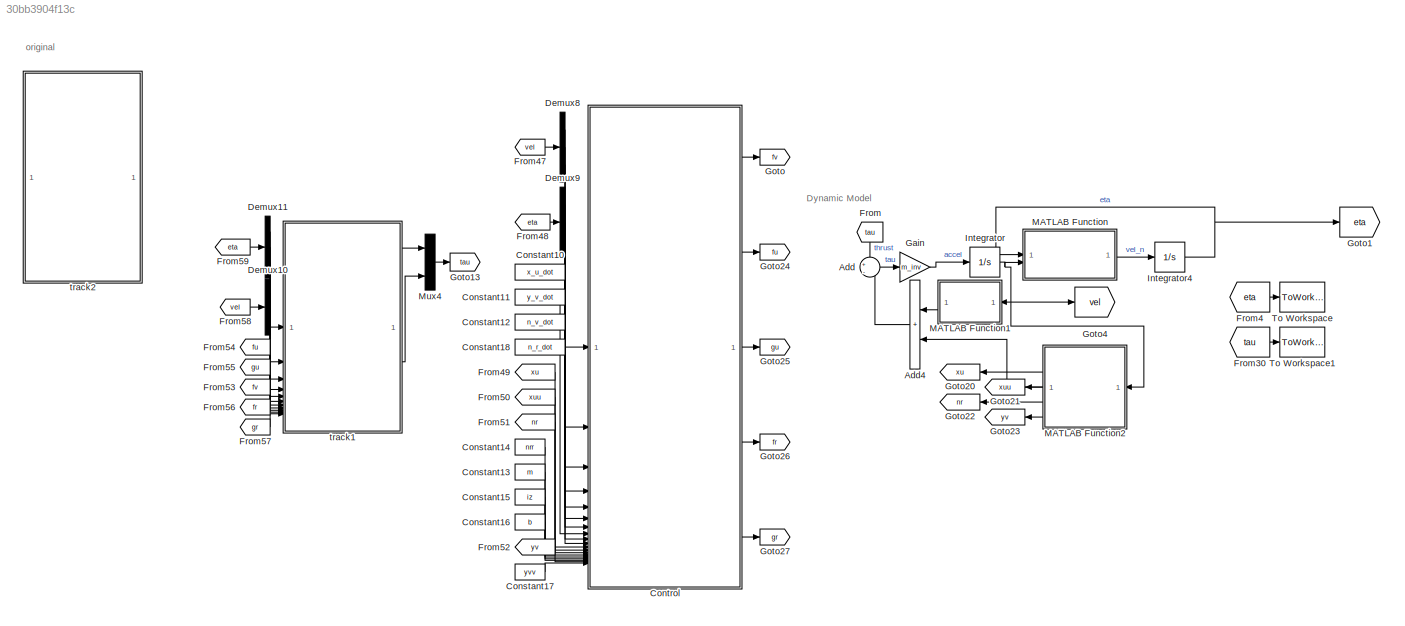
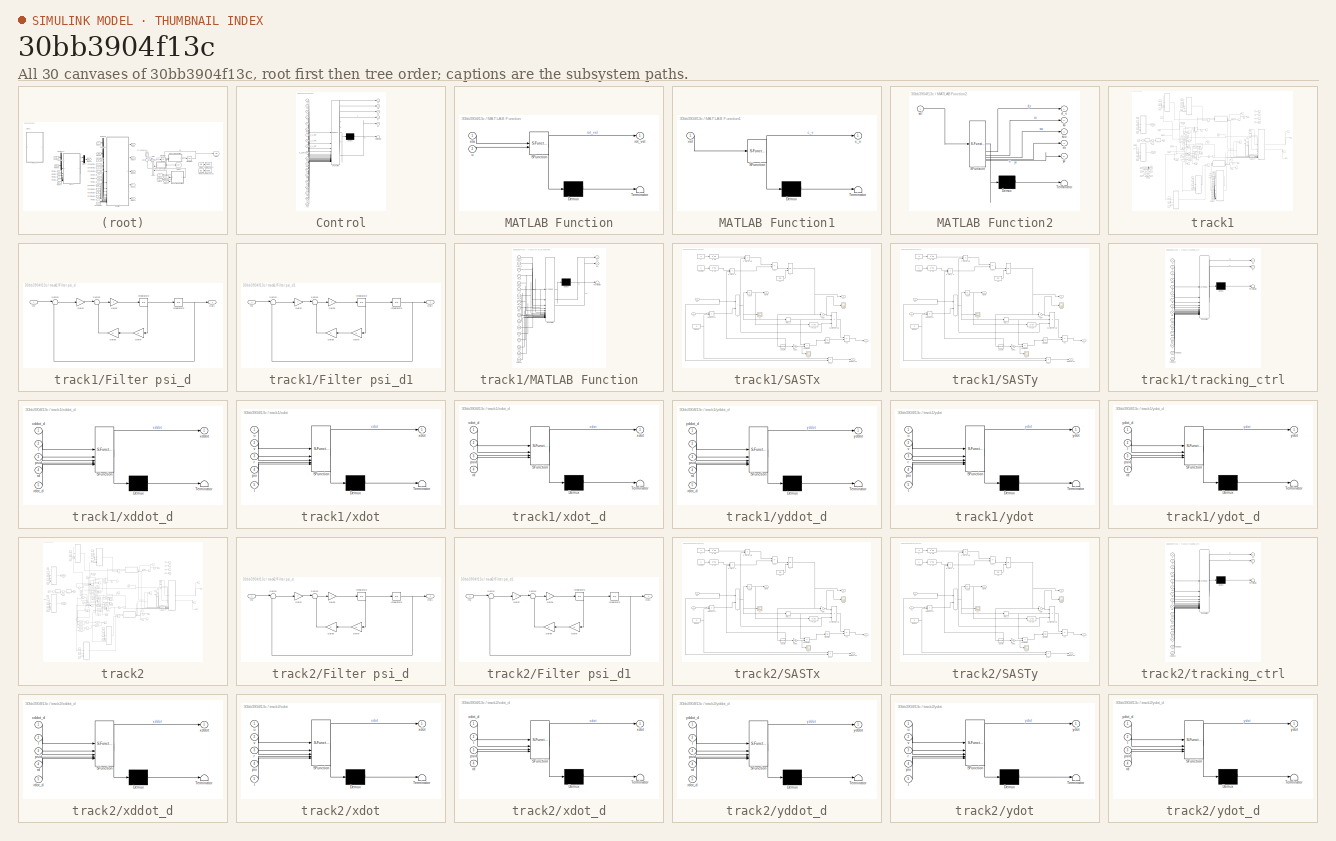
[diagram: thumbnail index - all 30 canvases of the model, root first then tree order]
MODEL slx_30bb3904f13c
KIND model
CONFIG AbsTol = auto
CONFIG EnableMultiTasking = off
CONFIG FixedStep = ts
CONFIG MaxStep = auto
CONFIG MinStep = auto
CONFIG RelTol = 1e-3
CONFIG SampleTimeConstraint = Unconstrained
CONFIG SolverName = ode1be
CONFIG StartTime = 0.0
CONFIG StopTime = tf
BLOCK [Sum] Add
  Inputs = +|-
BLOCK [Sum] Add4
  IconShape = rectangular
  NameLocation = top
BLOCK [Constant] Constant10
  Value = x_u_dot
BLOCK [Constant] Constant11
  Value = y_v_dot
BLOCK [Constant] Constant12
  Value = n_v_dot
BLOCK [Constant] Constant13
  Value = m
BLOCK [Constant] Constant14
  Value = nrr
BLOCK [Constant] Constant15
  Value = iz
BLOCK [Constant] Constant16
  Value = b
BLOCK [Constant] Constant17
  Value = yvv
BLOCK [Constant] Constant18
  Value = n_r_dot
BLOCK [SubSystem] Control
  ErrorFcn = Stateflow.Translate.translate
  LibrarySourceBlock = simulink/User-Defined\nFunctions/MATLAB Function
  PermitHierarchicalResolution = ExplicitOnly
  SFBlockType = MATLAB Function
  TreatAsAtomicUnit = on
BLOCK [Demux] Control/ Demux 
  Outputs = 1
BLOCK [S-Function] Control/ SFunction 
  EnableBusSupport = on
  FunctionName = sf_sfun
  PortCounts = [19 6]
  SFcnIsStateOwnerBlock = off
  SFunctionDeploymentMode = off
  Tag = Stateflow S-Function 15
BLOCK [Terminator] Control/ Terminator 
BLOCK [Inport] Control/b
  Port = 17
BLOCK [Outport] Control/fr
  Port = 4
BLOCK [Outport] Control/fu
  Port = 2
BLOCK [Outport] Control/fv
BLOCK [Outport] Control/gr
  Port = 5
BLOCK [Outport] Control/gu
  Port = 3
BLOCK [Inport] Control/iz
  Port = 16
BLOCK [Inport] Control/m
  Port = 15
BLOCK [Inport] Control/n_r_dot
  Port = 10
BLOCK [Inport] Control/n_v_dot
  Port = 9
BLOCK [Inport] Control/nr
  Port = 13
BLOCK [Inport] Control/nrr
  Port = 14
BLOCK [Inport] Control/psi
  Port = 6
BLOCK [Inport] Control/r
  Port = 3
BLOCK [Inport] Control/u
BLOCK [Inport] Control/v
  Port = 2
BLOCK [Inport] Control/x
  Port = 4
BLOCK [Inport] Control/x_u_dot
  Port = 7
BLOCK [Inport] Control/xu
  Port = 11
BLOCK [Inport] Control/xuu
  Port = 12
BLOCK [Inport] Control/y
  Port = 5
BLOCK [Inport] Control/y_v_dot
  Port = 8
BLOCK [Inport] Control/yv
  Port = 18
BLOCK [Inport] Control/yvv
  Port = 19
BLOCK [Demux] Demux10
  Outputs = 3
BLOCK [Demux] Demux11
  Outputs = 3
BLOCK [Demux] Demux8
  Outputs = 3
BLOCK [Demux] Demux9
  Outputs = 3
BLOCK [From] From
  GotoTag = tau
  NameLocation = left
BLOCK [From] From30
  GotoTag = tau
BLOCK [From] From4
  GotoTag = eta
BLOCK [From] From47
  GotoTag = vel
BLOCK [From] From48
  GotoTag = eta
BLOCK [From] From49
  GotoTag = xu
  NameLocation = top
BLOCK [From] From50
  GotoTag = xuu
  NameLocation = top
BLOCK [From] From51
  GotoTag = nr
  NameLocation = top
BLOCK [From] From52
  GotoTag = yv
  NameLocation = top
BLOCK [From] From53
  GotoTag = fv
BLOCK [From] From54
  GotoTag = fu
BLOCK [From] From55
  GotoTag = gu
BLOCK [From] From56
  GotoTag = fr
BLOCK [From] From57
  GotoTag = gr
BLOCK [From] From58
  GotoTag = vel
BLOCK [From] From59
  GotoTag = eta
BLOCK [Gain] Gain
  Gain = m_inv
  Multiplication = Matrix(K*u)
BLOCK [Goto] Goto
  GotoTag = fv
BLOCK [Goto] Goto1
  GotoTag = eta
BLOCK [Goto] Goto13
  GotoTag = tau
BLOCK [Goto] Goto20
  GotoTag = xu
  NameLocation = top
BLOCK [Goto] Goto21
  GotoTag = xuu
  NameLocation = top
BLOCK [Goto] Goto22
  GotoTag = nr
  NameLocation = top
BLOCK [Goto] Goto23
  GotoTag = yv
  NameLocation = top
BLOCK [Goto] Goto24
  GotoTag = fu
BLOCK [Goto] Goto25
  GotoTag = gu
BLOCK [Goto] Goto26
  GotoTag = fr
BLOCK [Goto] Goto27
  GotoTag = gr
BLOCK [Goto] Goto4
  GotoTag = vel
BLOCK [Integrator] Integrator
  InitialCondition = [0;0;0]
  LowerSaturationLimit = -2.5
  UpperSaturationLimit = 2.5
BLOCK [Integrator] Integrator4
  InitialCondition = [0;0;0]
BLOCK [SubSystem] MATLAB Function
  ErrorFcn = Stateflow.Translate.translate
  LibrarySourceBlock = simulink/User-Defined\nFunctions/MATLAB Function
  PermitHierarchicalResolution = ExplicitOnly
  SFBlockType = MATLAB Function
  TreatAsAtomicUnit = on
BLOCK [Demux] MATLAB Function/ Demux 
  Outputs = 1
BLOCK [S-Function] MATLAB Function/ SFunction 
  EnableBusSupport = on
  FunctionName = sf_sfun
  PortCounts = [2 2]
  SFcnIsStateOwnerBlock = off
  SFunctionDeploymentMode = off
  Tag = Stateflow S-Function 2
BLOCK [Terminator] MATLAB Function/ Terminator 
BLOCK [Inport] MATLAB Function/eta
BLOCK [Outport] MATLAB Function/rot_vel
BLOCK [Inport] MATLAB Function/u
  Port = 2
BLOCK [SubSystem] MATLAB Function1
  ErrorFcn = Stateflow.Translate.translate
  LibrarySourceBlock = simulink/User-Defined\nFunctions/MATLAB Function
  NameLocation = top
  PermitHierarchicalResolution = ExplicitOnly
  SFBlockType = MATLAB Function
  TreatAsAtomicUnit = on
BLOCK [Demux] MATLAB Function1/ Demux 
  Outputs = 1
BLOCK [S-Function] MATLAB Function1/ SFunction 
  EnableBusSupport = on
  FunctionName = sf_sfun
  Parameters = m,n_v_dot,x_u_dot,y_r_dot,y_v_dot
  PortCounts = [1 2]
  SFcnIsStateOwnerBlock = off
  SFunctionDeploymentMode = off
  Tag = Stateflow S-Function 1
BLOCK [Terminator] MATLAB Function1/ Terminator 
BLOCK [Outport] MATLAB Function1/c_v
BLOCK [Inport] MATLAB Function1/vel
BLOCK [SubSystem] MATLAB Function2
  ErrorFcn = Stateflow.Translate.translate
  LibrarySourceBlock = simulink/User-Defined\nFunctions/MATLAB Function
  NameLocation = top
  PermitHierarchicalResolution = ExplicitOnly
  SFBlockType = MATLAB Function
  TreatAsAtomicUnit = on
BLOCK [Demux] MATLAB Function2/ Demux 
  Outputs = 1
BLOCK [S-Function] MATLAB Function2/ SFunction 
  EnableBusSupport = on
  FunctionName = sf_sfun
  Parameters = nrr,nrv,nvr,nvv,yrr,yrv,yvr,yvv
  PortCounts = [1 6]
  SFcnIsStateOwnerBlock = off
  SFunctionDeploymentMode = off
  Tag = Stateflow S-Function 3
BLOCK [Terminator] MATLAB Function2/ Terminator 
BLOCK [Outport] MATLAB Function2/d_v
BLOCK [Outport] MATLAB Function2/nr
  Port = 4
BLOCK [Inport] MATLAB Function2/vel
BLOCK [Outport] MATLAB Function2/xu
  Port = 2
BLOCK [Outport] MATLAB Function2/xuu
  Port = 3
BLOCK [Outport] MATLAB Function2/yv
  Port = 5
BLOCK [Mux] Mux4
  DisplayOption = bar
  Inputs = 3
BLOCK [ToWorkspace] To Workspace
  FixptAsFi = on
  MaxDataPoints = inf
  SampleTime = -1
  SaveFormat = Timeseries
  VariableName = simout
BLOCK [ToWorkspace] To Workspace1
  FixptAsFi = on
  MaxDataPoints = inf
  SampleTime = -1
  SaveFormat = Timeseries
  VariableName = simout1
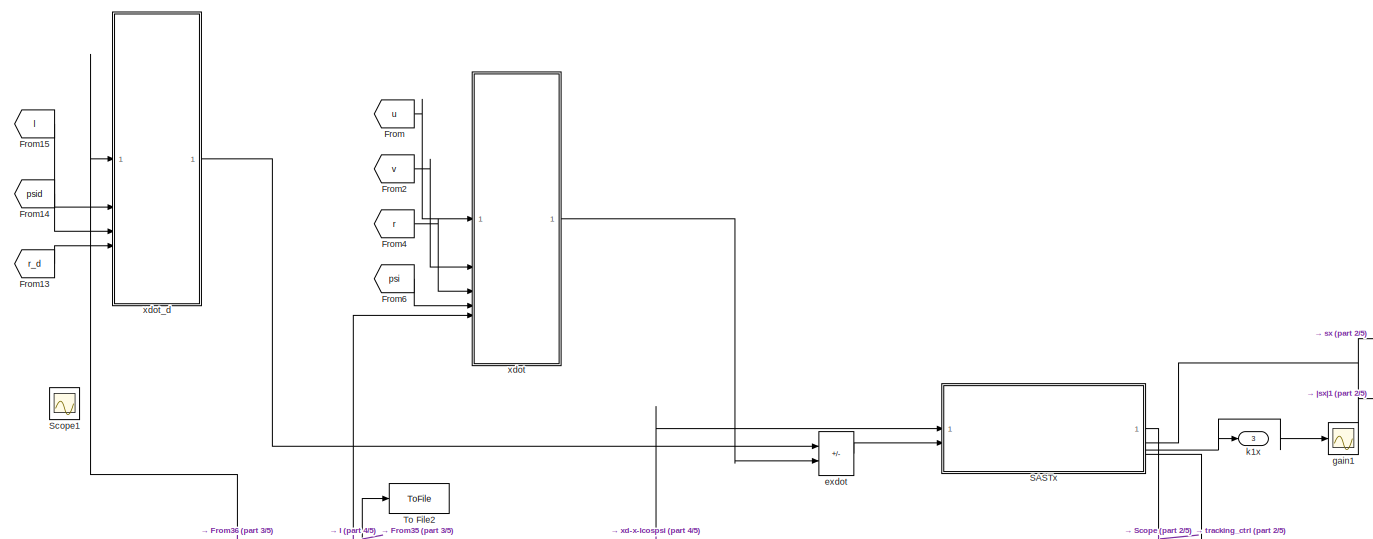
[diagram: track1 - part 1/5, top center region]
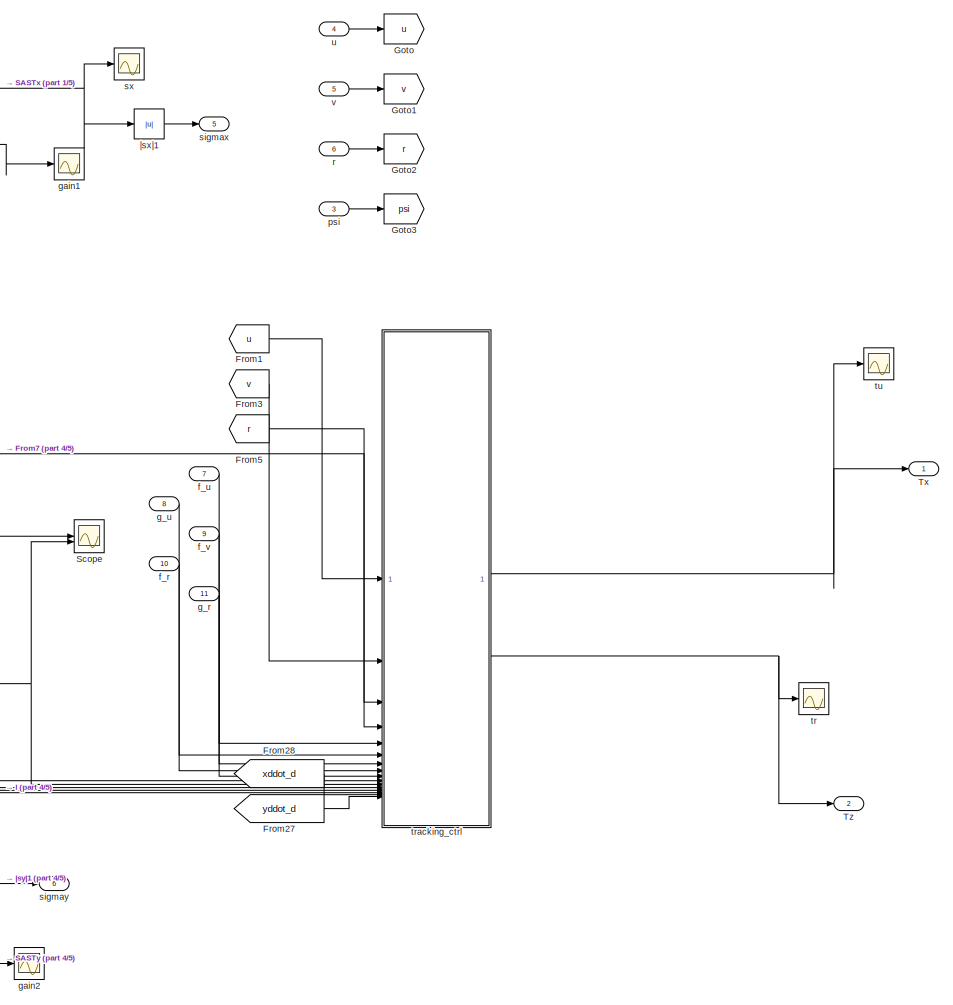
[diagram: track1 - part 2/5, middle right region]
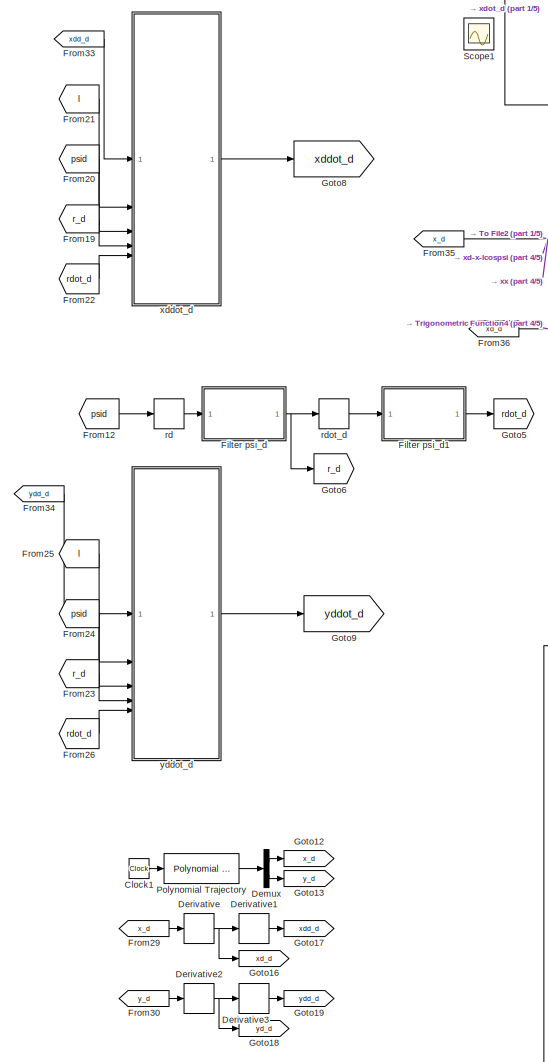
[diagram: track1 - part 3/5, middle left region]
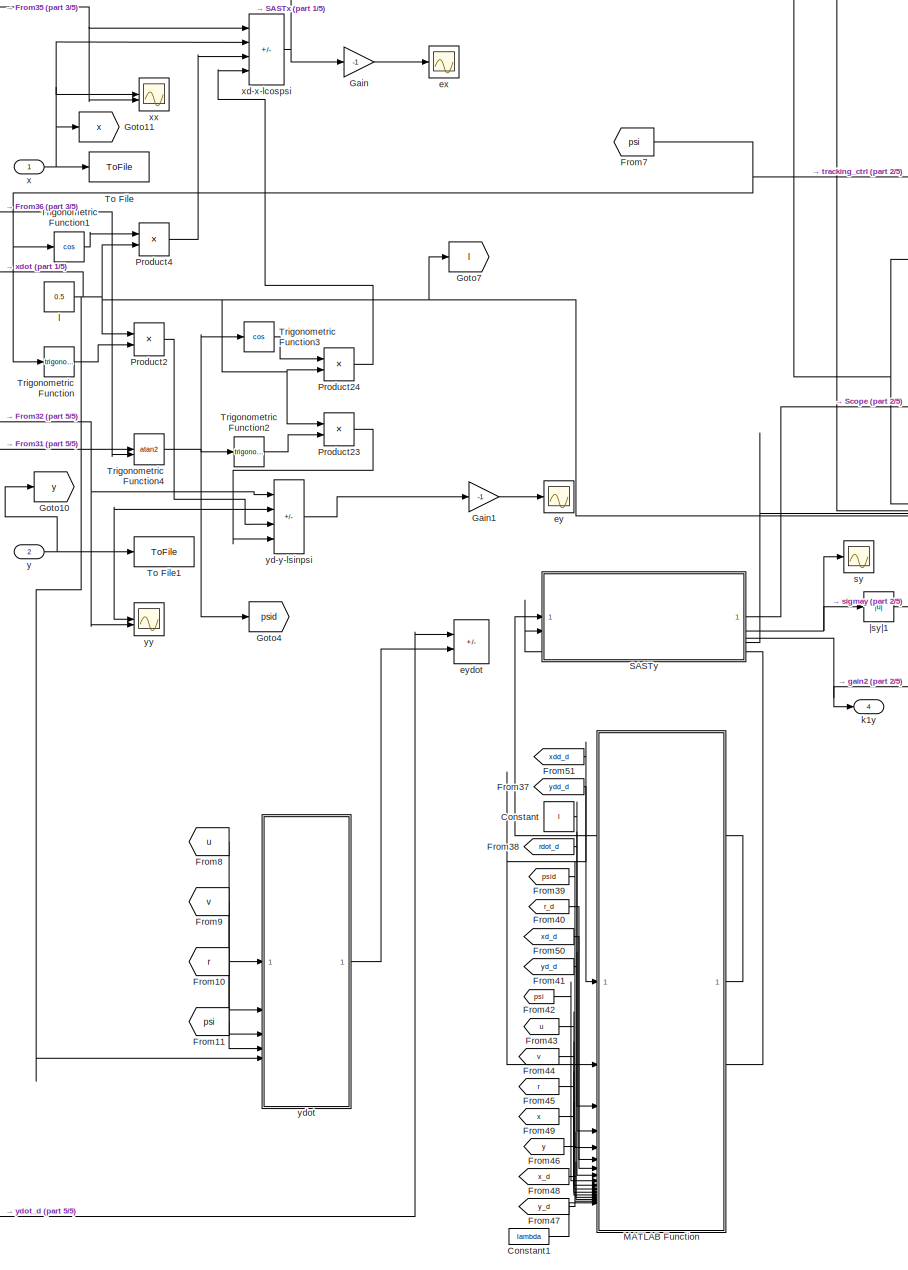
[diagram: track1 - part 4/5, central region]
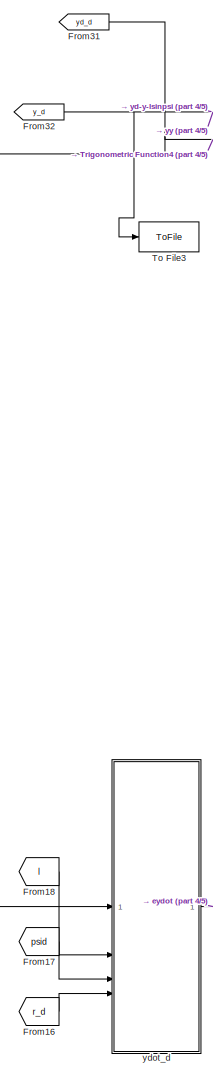
[diagram: track1 - part 5/5, bottom left region]
BLOCK [SubSystem] track1
BLOCK [Clock] track1/Clock1
BLOCK [Constant] track1/Constant
  Value = l
BLOCK [Constant] track1/Constant1
  Value = lambda
BLOCK [Demux] track1/Demux
  Outputs = 2
BLOCK [Derivative] track1/Derivative
BLOCK [Derivative] track1/Derivative1
BLOCK [Derivative] track1/Derivative2
BLOCK [Derivative] track1/Derivative3
BLOCK [SubSystem] track1/Filter psi_d
BLOCK [Gain] track1/Filter psi_d/Gain2
  Gain = 7
BLOCK [Gain] track1/Filter psi_d/Gain5
  Gain = 7
BLOCK [Gain] track1/Filter psi_d/Gain7
BLOCK [Gain] track1/Filter psi_d/Gain8
  Gain = 2
BLOCK [Inport] track1/Filter psi_d/In1
BLOCK [Integrator] track1/Filter psi_d/Integrator2
BLOCK [Integrator] track1/Filter psi_d/Integrator3
BLOCK [Outport] track1/Filter psi_d/Out1
  VectorParamsAs1DForOutWhenUnconnected = off
BLOCK [Sum] track1/Filter psi_d/Sum12
  Inputs = |+-
BLOCK [Sum] track1/Filter psi_d/Sum13
  Inputs = |+-
BLOCK [SubSystem] track1/Filter psi_d1
BLOCK [Gain] track1/Filter psi_d1/Gain2
  Gain = 7
BLOCK [Gain] track1/Filter psi_d1/Gain5
  Gain = 7
BLOCK [Gain] track1/Filter psi_d1/Gain7
BLOCK [Gain] track1/Filter psi_d1/Gain8
  Gain = 2
BLOCK [Inport] track1/Filter psi_d1/In1
BLOCK [Integrator] track1/Filter psi_d1/Integrator2
BLOCK [Integrator] track1/Filter psi_d1/Integrator3
BLOCK [Outport] track1/Filter psi_d1/Out1
  VectorParamsAs1DForOutWhenUnconnected = off
BLOCK [Sum] track1/Filter psi_d1/Sum12
  Inputs = |+-
BLOCK [Sum] track1/Filter psi_d1/Sum13
  Inputs = |+-
BLOCK [From] track1/From
  GotoTag = u
BLOCK [From] track1/From1
  GotoTag = u
BLOCK [From] track1/From10
  GotoTag = r
BLOCK [From] track1/From11
  GotoTag = psi
BLOCK [From] track1/From12
  GotoTag = psid
BLOCK [From] track1/From13
  GotoTag = r_d
BLOCK [From] track1/From14
  GotoTag = psid
BLOCK [From] track1/From15
  GotoTag = l
BLOCK [From] track1/From16
  GotoTag = r_d
BLOCK [From] track1/From17
  GotoTag = psid
BLOCK [From] track1/From18
  GotoTag = l
BLOCK [From] track1/From19
  GotoTag = r_d
BLOCK [From] track1/From2
  GotoTag = v
BLOCK [From] track1/From20
  GotoTag = psid
BLOCK [From] track1/From21
  GotoTag = l
BLOCK [From] track1/From22
  GotoTag = rdot_d
BLOCK [From] track1/From23
  GotoTag = r_d
BLOCK [From] track1/From24
  GotoTag = psid
BLOCK [From] track1/From25
  GotoTag = l
BLOCK [From] track1/From26
  GotoTag = rdot_d
BLOCK [From] track1/From27
  GotoTag = yddot_d
BLOCK [From] track1/From28
  GotoTag = xddot_d
BLOCK [From] track1/From29
  GotoTag = x_d
BLOCK [From] track1/From3
  GotoTag = v
BLOCK [From] track1/From30
  GotoTag = y_d
BLOCK [From] track1/From31
  GotoTag = yd_d
BLOCK [From] track1/From32
  GotoTag = y_d
BLOCK [From] track1/From33
  GotoTag = xdd_d
BLOCK [From] track1/From34
  GotoTag = ydd_d
BLOCK [From] track1/From35
  GotoTag = x_d
BLOCK [From] track1/From36
  GotoTag = xd_d
BLOCK [From] track1/From37
  GotoTag = ydd_d
BLOCK [From] track1/From38
  GotoTag = rdot_d
BLOCK [From] track1/From39
  GotoTag = psid
BLOCK [From] track1/From4
  GotoTag = r
BLOCK [From] track1/From40
  GotoTag = r_d
BLOCK [From] track1/From41
  GotoTag = yd_d
BLOCK [From] track1/From42
  GotoTag = psi
BLOCK [From] track1/From43
  GotoTag = u
BLOCK [From] track1/From44
  GotoTag = v
BLOCK [From] track1/From45
  GotoTag = r
BLOCK [From] track1/From46
  GotoTag = y
BLOCK [From] track1/From47
  GotoTag = y_d
BLOCK [From] track1/From48
  GotoTag = x_d
BLOCK [From] track1/From49
  GotoTag = x
BLOCK [From] track1/From5
  GotoTag = r
BLOCK [From] track1/From50
  GotoTag = xd_d
BLOCK [From] track1/From51
  GotoTag = xdd_d
BLOCK [From] track1/From6
  GotoTag = psi
BLOCK [From] track1/From7
  GotoTag = psi
BLOCK [From] track1/From8
  GotoTag = u
BLOCK [From] track1/From9
  GotoTag = v
BLOCK [Gain] track1/Gain
  Gain = -1
BLOCK [Gain] track1/Gain1
  Gain = -1
BLOCK [Goto] track1/Goto
  GotoTag = u
BLOCK [Goto] track1/Goto1
  GotoTag = v
BLOCK [Goto] track1/Goto10
  GotoTag = y
BLOCK [Goto] track1/Goto11
  GotoTag = x
BLOCK [Goto] track1/Goto12
  GotoTag = x_d
BLOCK [Goto] track1/Goto13
  GotoTag = y_d
BLOCK [Goto] track1/Goto16
  GotoTag = xd_d
BLOCK [Goto] track1/Goto17
  GotoTag = xdd_d
BLOCK [Goto] track1/Goto18
  GotoTag = yd_d
BLOCK [Goto] track1/Goto19
  GotoTag = ydd_d
BLOCK [Goto] track1/Goto2
  GotoTag = r
BLOCK [Goto] track1/Goto3
  GotoTag = psi
BLOCK [Goto] track1/Goto4
  GotoTag = psid
BLOCK [Goto] track1/Goto5
  GotoTag = rdot_d
BLOCK [Goto] track1/Goto6
  GotoTag = r_d
BLOCK [Goto] track1/Goto7
  GotoTag = l
BLOCK [Goto] track1/Goto8
  GotoTag = xddot_d
BLOCK [Goto] track1/Goto9
  GotoTag = yddot_d
BLOCK [SubSystem] track1/MATLAB Function
  ErrorFcn = Stateflow.Translate.translate
  LibrarySourceBlock = simulink/User-Defined\nFunctions/MATLAB Function
  PermitHierarchicalResolution = ExplicitOnly
  SFBlockType = MATLAB Function
  TreatAsAtomicUnit = on
BLOCK [Demux] track1/MATLAB Function/ Demux 
  Outputs = 1
BLOCK [S-Function] track1/MATLAB Function/ SFunction 
  EnableBusSupport = on
  FunctionName = sf_sfun
  PortCounts = [17 3]
  SFcnIsStateOwnerBlock = off
  SFunctionDeploymentMode = off
  Tag = Stateflow S-Function 11
BLOCK [Terminator] track1/MATLAB Function/ Terminator 
BLOCK [Outport] track1/MATLAB Function/e1
BLOCK [Outport] track1/MATLAB Function/e2
  Port = 2
BLOCK [Inport] track1/MATLAB Function/l
  Port = 3
BLOCK [Inport] track1/MATLAB Function/lambda
  Port = 17
BLOCK [Inport] track1/MATLAB Function/psi
  Port = 9
BLOCK [Inport] track1/MATLAB Function/psi_d
  Port = 5
BLOCK [Inport] track1/MATLAB Function/r
  Port = 12
BLOCK [Inport] track1/MATLAB Function/r_d
  Port = 6
BLOCK [Inport] track1/MATLAB Function/rd_d
  Port = 4
BLOCK [Inport] track1/MATLAB Function/u
  Port = 10
BLOCK [Inport] track1/MATLAB Function/v
  Port = 11
BLOCK [Inport] track1/MATLAB Function/x
  Port = 13
BLOCK [Inport] track1/MATLAB Function/x_d
  Port = 15
BLOCK [Inport] track1/MATLAB Function/xd_d
  Port = 7
BLOCK [Inport] track1/MATLAB Function/xdd_d
BLOCK [Inport] track1/MATLAB Function/y
  Port = 14
BLOCK [Inport] track1/MATLAB Function/y_d
  Port = 16
BLOCK [Inport] track1/MATLAB Function/yd_d
  Port = 8
BLOCK [Inport] track1/MATLAB Function/ydd_d
  Port = 2
BLOCK [Reference] track1/Polynomial Trajectory  REF=robotcorelib/Polynomial Trajectory
  LibrarySourceBlock = robotutilslib/Polynomial Trajectory
  SourceBlock = robotcorelib/Polynomial Trajectory
  SourceType = robotics.slcore.internal.block.PolyTrajSys
BLOCK [Product] track1/Product2
BLOCK [Product] track1/Product23
BLOCK [Product] track1/Product24
BLOCK [Product] track1/Product4
BLOCK [SubSystem] track1/SASTx
BLOCK [Abs] track1/SASTx/Abs5
  SaturateOnIntegerOverflow = off
BLOCK [Gain] track1/SASTx/Gain
  Gain = 2
BLOCK [Gain] track1/SASTx/Gain1
  Gain = 1/2
BLOCK [Integrator] track1/SASTx/Integrator
BLOCK [Product] track1/SASTx/K1signs|s|^1//2
  Inputs = ***
BLOCK [Product] track1/SASTx/K2sign(s)
BLOCK [Integrator] track1/SASTx/L
  InitialConditionSource = external
BLOCK [Constant] track1/SASTx/L0
  Value = 0.1
BLOCK [Sum] track1/SASTx/Ldot
  IconShape = rectangular
  Inputs = +-
BLOCK [Product] track1/SASTx/Le2
BLOCK [Math] track1/SASTx/Square
  Operator = square
BLOCK [Inport] track1/SASTx/e1
BLOCK [Inport] track1/SASTx/e2
  Port = 2
BLOCK [Fcn] track1/SASTx/g^1//2
  Expr = u^0.5
BLOCK [Product] track1/SASTx/g^1//2*L^2
BLOCK [Scope] track1/SASTx/gain
  Floating = off
  NumInputPorts = 1
  ScopeSpecificationString = Simulink.scopes.TimeScopeBlockCfg('CurrentConfiguration', extmgr.ConfigurationSet(extmgr.Configuration('Core','General UI',true),extmgr.Configuration('Core','Source UI',true),extmgr.Configuration('Sources','WiredSimulink',true,'DataLoggingVariableName','ScopeData1'),extmgr.Configuration('Visuals','Time Domain',true,'SerializedDisplays',{struct('MinYLimReal','-0.00125','MaxYLimReal','0.01126','YLab...<+1437ch>
BLOCK [Constant] track1/SASTx/gamma
BLOCK [Constant] track1/SASTx/k
  Value = 3
BLOCK [Outport] track1/SASTx/k1
  Port = 3
  VectorParamsAs1DForOutWhenUnconnected = off
BLOCK [Scope] track1/SASTx/k2
  Floating = off
  NumInputPorts = 1
  ScopeSpecificationString = Simulink.scopes.TimeScopeBlockCfg('CurrentConfiguration', extmgr.ConfigurationSet(extmgr.Configuration('Core','General UI',true),extmgr.Configuration('Core','Source UI',true),extmgr.Configuration('Sources','WiredSimulink',true,'DataLoggingVariableName','ScopeData1'),extmgr.Configuration('Visuals','Time Domain',true,'SerializedDisplays',{struct('MinYLimReal','-0.04667','MaxYLimReal','0.42052','YLab...<+1440ch>  <repeated x4 — deduplicated; at blocks: k2>
BLOCK [Fcn] track1/SASTx/k^1//2
  Expr = u^0.5
BLOCK [Product] track1/SASTx/k^1//2*|s|^1//2
BLOCK [Constant] track1/SASTx/lambda
BLOCK [Product] track1/SASTx/lambda*e1
BLOCK [Outport] track1/SASTx/lambda*e2
  Port = 4
  VectorParamsAs1DForOutWhenUnconnected = off
BLOCK [Sum] track1/SASTx/s
  IconShape = rectangular
BLOCK [Scope] track1/SASTx/s1
  Floating = off
  NumInputPorts = 1
  ScopeSpecificationString = Simulink.scopes.TimeScopeBlockCfg('CurrentConfiguration', extmgr.ConfigurationSet(extmgr.Configuration('Core','General UI',true),extmgr.Configuration('Core','Source UI',true),extmgr.Configuration('Sources','WiredSimulink',true,'DataLoggingVariableName','ScopeData1'),extmgr.Configuration('Visuals','Time Domain',true,'SerializedDisplays',{struct('MinYLimReal','-0.23348','MaxYLimReal','1.13705','YLab...<+1435ch>  <repeated x4 — deduplicated; at blocks: s1>
BLOCK [Outport] track1/SASTx/sigma
  Port = 2
  VectorParamsAs1DForOutWhenUnconnected = off
BLOCK [Signum] track1/SASTx/sign_s
BLOCK [Outport] track1/SASTx/u
  VectorParamsAs1DForOutWhenUnconnected = off
BLOCK [Sum] track1/SASTx/ua
  IconShape = rectangular
  Inputs = --
BLOCK [Fcn] track1/SASTx/|s|^1//2
  Expr = u^0.5
BLOCK [SubSystem] track1/SASTy
BLOCK [Abs] track1/SASTy/Abs5
  SaturateOnIntegerOverflow = off
BLOCK [Gain] track1/SASTy/Gain
  Gain = 2
BLOCK [Gain] track1/SASTy/Gain1
  Gain = 1/2
BLOCK [Integrator] track1/SASTy/Integrator
BLOCK [Product] track1/SASTy/K1signs|s|^1//2
  Inputs = ***
BLOCK [Product] track1/SASTy/K2sign(s)
BLOCK [Integrator] track1/SASTy/L
  InitialConditionSource = external
BLOCK [Constant] track1/SASTy/L0
  Value = 0.1
BLOCK [Sum] track1/SASTy/Ldot
  IconShape = rectangular
  Inputs = +-
BLOCK [Product] track1/SASTy/Le2
BLOCK [Math] track1/SASTy/Square
  Operator = square
BLOCK [Inport] track1/SASTy/e1
BLOCK [Inport] track1/SASTy/e2
  Port = 2
BLOCK [Fcn] track1/SASTy/g^1//2
  Expr = u^0.5
BLOCK [Product] track1/SASTy/g^1//2*L^2
BLOCK [Scope] track1/SASTy/gain
  Floating = off
  NumInputPorts = 1
  ScopeSpecificationString = Simulink.scopes.TimeScopeBlockCfg('CurrentConfiguration', extmgr.ConfigurationSet(extmgr.Configuration('Core','General UI',true),extmgr.Configuration('Core','Source UI',true),extmgr.Configuration('Sources','WiredSimulink',true,'DataLoggingVariableName','ScopeData1'),extmgr.Configuration('Visuals','Time Domain',true,'SerializedDisplays',{struct('MinYLimReal','-0.00125','MaxYLimReal','0.01126','YLab...<+1444ch>
BLOCK [Constant] track1/SASTy/gamma
BLOCK [Constant] track1/SASTy/k
  Value = 3
BLOCK [Outport] track1/SASTy/k1
  Port = 3
  VectorParamsAs1DForOutWhenUnconnected = off
BLOCK [Scope] track1/SASTy/k2
  Floating = off
  NumInputPorts = 1
BLOCK [Fcn] track1/SASTy/k^1//2
  Expr = u^0.5
BLOCK [Product] track1/SASTy/k^1//2*|s|^1//2
BLOCK [Constant] track1/SASTy/lambda
BLOCK [Product] track1/SASTy/lambda*e1
BLOCK [Outport] track1/SASTy/lambda*e2
  Port = 4
  VectorParamsAs1DForOutWhenUnconnected = off
BLOCK [Sum] track1/SASTy/s
  IconShape = rectangular
BLOCK [Scope] track1/SASTy/s1
  Floating = off
  NumInputPorts = 1
BLOCK [Outport] track1/SASTy/sigma
  Port = 2
  VectorParamsAs1DForOutWhenUnconnected = off
BLOCK [Signum] track1/SASTy/sign_s
BLOCK [Outport] track1/SASTy/u
  VectorParamsAs1DForOutWhenUnconnected = off
BLOCK [Sum] track1/SASTy/ua
  IconShape = rectangular
  Inputs = --
BLOCK [Fcn] track1/SASTy/|s|^1//2
  Expr = u^0.5
BLOCK [Scope] track1/Scope
  Floating = off
  NumInputPorts = 2
  ScopeSpecificationString = Simulink.scopes.TimeScopeBlockCfg('CurrentConfiguration', extmgr.ConfigurationSet(extmgr.Configuration('Core','General UI',true),extmgr.Configuration('Core','Source UI',true),extmgr.Configuration('Sources','WiredSimulink',true,'DataLoggingVariableName','ScopeData1'),extmgr.Configuration('Visuals','Time Domain',true,'SerializedDisplays',{struct('MinYLimReal','-1.02797','MaxYLimReal','1.70775','YLab...<+1434ch>
BLOCK [Scope] track1/Scope1
  Floating = off
  NumInputPorts = 1
  ScopeSpecificationString = Simulink.scopes.TimeScopeBlockCfg('CurrentConfiguration', extmgr.ConfigurationSet(extmgr.Configuration('Core','General UI',true),extmgr.Configuration('Core','Source UI',true),extmgr.Configuration('Sources','WiredSimulink',true,'DataLoggingVariableName','ScopeData1'),extmgr.Configuration('Visuals','Time Domain',true,'SerializedDisplays',{struct('MinYLimReal','-1.00000','MaxYLimReal','1.00000','YLab...<+1432ch>
BLOCK [ToFile] track1/To File
  Filename = xasmc.mat
BLOCK [ToFile] track1/To File1
  Filename = yasmc.mat
BLOCK [ToFile] track1/To File2
  Filename = xdasmc.mat
BLOCK [ToFile] track1/To File3
  Filename = ydasmc.mat
BLOCK [Trigonometry] track1/Trigonometric Function
BLOCK [Trigonometry] track1/Trigonometric Function1
  Operator = cos
BLOCK [Trigonometry] track1/Trigonometric Function2
BLOCK [Trigonometry] track1/Trigonometric Function3
  Operator = cos
BLOCK [Trigonometry] track1/Trigonometric Function4
  Operator = atan2
BLOCK [Outport] track1/Tx
BLOCK [Outport] track1/Tz
  Port = 2
BLOCK [Scope] track1/ex
  Floating = off
  NumInputPorts = 1
  ScopeSpecificationString = Simulink.scopes.TimeScopeBlockCfg('CurrentConfiguration', extmgr.ConfigurationSet(extmgr.Configuration('Core','General UI',true),extmgr.Configuration('Core','Source UI',true),extmgr.Configuration('Sources','WiredSimulink',true,'DataLoggingVariableName','ScopeData3'),extmgr.Configuration('Visuals','Time Domain',true,'SerializedDisplays',{struct('MinYLimReal','-1.0027','MaxYLimReal','0.7402','YLabel...<+1431ch>
BLOCK [Sum] track1/exdot
  IconShape = rectangular
  Inputs = +-
BLOCK [Scope] track1/ey
  Floating = off
  NumInputPorts = 1
  ScopeSpecificationString = Simulink.scopes.TimeScopeBlockCfg('CurrentConfiguration', extmgr.ConfigurationSet(extmgr.Configuration('Core','General UI',true),extmgr.Configuration('Core','Source UI',true),extmgr.Configuration('Sources','WiredSimulink',true,'DataLoggingVariableName','ScopeData2'),extmgr.Configuration('Visuals','Time Domain',true,'SerializedDisplays',{struct('MinYLimReal','-2.34211','MaxYLimReal','1.01572','YLab...<+1438ch>
BLOCK [Sum] track1/eydot
  IconShape = rectangular
  Inputs = +-
BLOCK [Inport] track1/f_r
  Port = 10
BLOCK [Inport] track1/f_u
  Port = 7
BLOCK [Inport] track1/f_v
  Port = 9
BLOCK [Inport] track1/g_r
  Port = 11
BLOCK [Inport] track1/g_u
  Port = 8
BLOCK [Scope] track1/gain1
  Floating = off
  NumInputPorts = 1
  ScopeSpecificationString = Simulink.scopes.TimeScopeBlockCfg('CurrentConfiguration', extmgr.ConfigurationSet(extmgr.Configuration('Core','General UI',true),extmgr.Configuration('Core','Source UI',true),extmgr.Configuration('Sources','WiredSimulink',true,'DataLoggingVariableName','ScopeData4'),extmgr.Configuration('Visuals','Time Domain',true,'SerializedDisplays',{struct('MinYLimReal','-0.11269','MaxYLimReal','1.11421','YLab...<+1440ch>
BLOCK [Scope] track1/gain2
  Floating = off
  NumInputPorts = 1
  ScopeSpecificationString = Simulink.scopes.TimeScopeBlockCfg('CurrentConfiguration', extmgr.ConfigurationSet(extmgr.Configuration('Core','General UI',true),extmgr.Configuration('Core','Source UI',true),extmgr.Configuration('Sources','WiredSimulink',true,'DataLoggingVariableName','ScopeData7'),extmgr.Configuration('Visuals','Time Domain',true,'SerializedDisplays',{struct('MinYLimReal','-0.11269','MaxYLimReal','1.11421','YLab...<+1440ch>
BLOCK [Outport] track1/k1x
  Port = 3
  VectorParamsAs1DForOutWhenUnconnected = off
BLOCK [Outport] track1/k1y
  Port = 4
  VectorParamsAs1DForOutWhenUnconnected = off
BLOCK [Constant] track1/l
  Value = 0.5
BLOCK [Inport] track1/psi
  Port = 3
BLOCK [Inport] track1/r
  Port = 6
BLOCK [Derivative] track1/rd
BLOCK [Derivative] track1/rdot_d
BLOCK [Outport] track1/sigmax
  Port = 5
  VectorParamsAs1DForOutWhenUnconnected = off
BLOCK [Outport] track1/sigmay
  Port = 6
  VectorParamsAs1DForOutWhenUnconnected = off
BLOCK [Scope] track1/sx
  Floating = off
  NumInputPorts = 1
  ScopeSpecificationString = Simulink.scopes.TimeScopeBlockCfg('CurrentConfiguration', extmgr.ConfigurationSet(extmgr.Configuration('Core','General UI',true),extmgr.Configuration('Core','Source UI',true),extmgr.Configuration('Sources','WiredSimulink',true,'DataLoggingVariableName','ScopeData1'),extmgr.Configuration('Visuals','Time Domain',true,'SerializedDisplays',{struct('MinYLimReal','-0.16069','MaxYLimReal','1.43847','YLab...<+1440ch>
BLOCK [Scope] track1/sy
  Floating = off
  NumInputPorts = 1
  ScopeSpecificationString = Simulink.scopes.TimeScopeBlockCfg('CurrentConfiguration', extmgr.ConfigurationSet(extmgr.Configuration('Core','General UI',true),extmgr.Configuration('Core','Source UI',true),extmgr.Configuration('Sources','WiredSimulink',true,'DataLoggingVariableName','ScopeData3'),extmgr.Configuration('Visuals','Time Domain',true,'SerializedDisplays',{struct('MinYLimReal','-0.70439','MaxYLimReal','1.74496','YLab...<+1447ch>
BLOCK [Scope] track1/tr
  Floating = off
  NumInputPorts = 1
  ScopeSpecificationString = Simulink.scopes.TimeScopeBlockCfg('CurrentConfiguration', extmgr.ConfigurationSet(extmgr.Configuration('Core','General UI',true),extmgr.Configuration('Core','Source UI',true),extmgr.Configuration('Sources','WiredSimulink',true,'DataLoggingVariableName','ScopeData4'),extmgr.Configuration('Visuals','Time Domain',true,'SerializedDisplays',{struct('MinYLimReal','-37.5051','MaxYLimReal','30.06561','YLa...<+1455ch>
BLOCK [SubSystem] track1/tracking_ctrl
  ErrorFcn = Stateflow.Translate.translate
  PermitHierarchicalResolution = ExplicitOnly
  SFBlockType = MATLAB Function
  TreatAsAtomicUnit = on
BLOCK [Demux] track1/tracking_ctrl/ Demux 
  Outputs = 1
BLOCK [S-Function] track1/tracking_ctrl/ SFunction 
  EnableBusSupport = on
  FunctionName = sf_sfun
  PortCounts = [16 3]
  SFcnIsStateOwnerBlock = off
  SFunctionDeploymentMode = off
  Tag = Stateflow S-Function 16
BLOCK [Terminator] track1/tracking_ctrl/ Terminator 
BLOCK [Inport] track1/tracking_ctrl/fr
  Port = 8
BLOCK [Inport] track1/tracking_ctrl/fu
  Port = 5
BLOCK [Inport] track1/tracking_ctrl/fv
  Port = 7
BLOCK [Inport] track1/tracking_ctrl/gr
  Port = 9
BLOCK [Inport] track1/tracking_ctrl/gu
  Port = 6
BLOCK [Inport] track1/tracking_ctrl/l
  Port = 14
BLOCK [Inport] track1/tracking_ctrl/le2x
  Port = 12
BLOCK [Inport] track1/tracking_ctrl/le2y
  Port = 13
BLOCK [Inport] track1/tracking_ctrl/psi
  Port = 4
BLOCK [Inport] track1/tracking_ctrl/r
  Port = 3
BLOCK [Outport] track1/tracking_ctrl/tr
  Port = 2
BLOCK [Outport] track1/tracking_ctrl/tu
BLOCK [Inport] track1/tracking_ctrl/u
BLOCK [Inport] track1/tracking_ctrl/uax
  Port = 10
BLOCK [Inport] track1/tracking_ctrl/uay
  Port = 11
BLOCK [Inport] track1/tracking_ctrl/v
  Port = 2
BLOCK [Inport] track1/tracking_ctrl/xddot_d
  Port = 15
BLOCK [Inport] track1/tracking_ctrl/yddot_d
  Port = 16
BLOCK [Scope] track1/tu
  Floating = off
  NumInputPorts = 1
  ScopeSpecificationString = Simulink.scopes.TimeScopeBlockCfg('CurrentConfiguration', extmgr.ConfigurationSet(extmgr.Configuration('Core','General UI',true),extmgr.Configuration('Core','Source UI',true),extmgr.Configuration('Sources','WiredSimulink',true,'DataLoggingVariableName','ScopeData10'),extmgr.Configuration('Visuals','Time Domain',true,'SerializedDisplays',{struct('MinYLimReal','-27.47489','MaxYLimReal','158.67897','...<+1460ch>
BLOCK [Inport] track1/u
  Port = 4
BLOCK [Inport] track1/v
  Port = 5
BLOCK [Inport] track1/x
BLOCK [Sum] track1/xd-x-lcospsi
  IconShape = rectangular
  Inputs = +--+
BLOCK [SubSystem] track1/xddot_d
  ErrorFcn = Stateflow.Translate.translate
  PermitHierarchicalResolution = ExplicitOnly
  SFBlockType = MATLAB Function
  TreatAsAtomicUnit = on
BLOCK [Demux] track1/xddot_d/ Demux 
  Outputs = 1
BLOCK [S-Function] track1/xddot_d/ SFunction 
  EnableBusSupport = on
  FunctionName = sf_sfun
  PortCounts = [5 2]
  SFcnIsStateOwnerBlock = off
  SFunctionDeploymentMode = off
  Tag = Stateflow S-Function 17
BLOCK [Terminator] track1/xddot_d/ Terminator 
BLOCK [Inport] track1/xddot_d/l
  Port = 2
BLOCK [Inport] track1/xddot_d/psid
  Port = 3
BLOCK [Inport] track1/xddot_d/rd
  Port = 4
BLOCK [Inport] track1/xddot_d/rdot_d
  Port = 5
BLOCK [Outport] track1/xddot_d/xddot
BLOCK [Inport] track1/xddot_d/xddot_d
BLOCK [SubSystem] track1/xdot
  ErrorFcn = Stateflow.Translate.translate
  PermitHierarchicalResolution = ExplicitOnly
  SFBlockType = MATLAB Function
  TreatAsAtomicUnit = on
BLOCK [Demux] track1/xdot/ Demux 
  Outputs = 1
BLOCK [S-Function] track1/xdot/ SFunction 
  EnableBusSupport = on
  FunctionName = sf_sfun
  PortCounts = [5 2]
  SFcnIsStateOwnerBlock = off
  SFunctionDeploymentMode = off
  Tag = Stateflow S-Function 18
BLOCK [Terminator] track1/xdot/ Terminator 
BLOCK [Inport] track1/xdot/l
  Port = 5
BLOCK [Inport] track1/xdot/psi
  Port = 4
BLOCK [Inport] track1/xdot/r
  Port = 3
BLOCK [Inport] track1/xdot/u
BLOCK [Inport] track1/xdot/v
  Port = 2
BLOCK [Outport] track1/xdot/xdot
BLOCK [SubSystem] track1/xdot_d
  ErrorFcn = Stateflow.Translate.translate
  PermitHierarchicalResolution = ExplicitOnly
  SFBlockType = MATLAB Function
  TreatAsAtomicUnit = on
BLOCK [Demux] track1/xdot_d/ Demux 
  Outputs = 1
BLOCK [S-Function] track1/xdot_d/ SFunction 
  EnableBusSupport = on
  FunctionName = sf_sfun
  PortCounts = [4 2]
  SFcnIsStateOwnerBlock = off
  SFunctionDeploymentMode = off
  Tag = Stateflow S-Function 19
BLOCK [Terminator] track1/xdot_d/ Terminator 
BLOCK [Inport] track1/xdot_d/l
  Port = 2
BLOCK [Inport] track1/xdot_d/psid
  Port = 3
BLOCK [Inport] track1/xdot_d/rd
  Port = 4
BLOCK [Outport] track1/xdot_d/xdot
BLOCK [Inport] track1/xdot_d/xdot_d
BLOCK [Scope] track1/xx
  Floating = off
  NumInputPorts = 2
  ScopeSpecificationString = Simulink.scopes.TimeScopeBlockCfg('CurrentConfiguration', extmgr.ConfigurationSet(extmgr.Configuration('Core','General UI',true),extmgr.Configuration('Core','Source UI',true),extmgr.Configuration('Sources','WiredSimulink',true,'DataLoggingVariableName','ScopeData3'),extmgr.Configuration('Visuals','Time Domain',true,'SerializedDisplays',{struct('MinYLimReal','-2.34886','MaxYLimReal','4.25965','YLab...<+1439ch>
BLOCK [Inport] track1/y
  Port = 2
BLOCK [Sum] track1/yd-y-lsinpsi
  IconShape = rectangular
  Inputs = +--+
BLOCK [SubSystem] track1/yddot_d
  ErrorFcn = Stateflow.Translate.translate
  PermitHierarchicalResolution = ExplicitOnly
  SFBlockType = MATLAB Function
  TreatAsAtomicUnit = on
BLOCK [Demux] track1/yddot_d/ Demux 
  Outputs = 1
BLOCK [S-Function] track1/yddot_d/ SFunction 
  EnableBusSupport = on
  FunctionName = sf_sfun
  PortCounts = [5 2]
  SFcnIsStateOwnerBlock = off
  SFunctionDeploymentMode = off
  Tag = Stateflow S-Function 20
BLOCK [Terminator] track1/yddot_d/ Terminator 
BLOCK [Inport] track1/yddot_d/l
  Port = 2
BLOCK [Inport] track1/yddot_d/psid
  Port = 3
BLOCK [Inport] track1/yddot_d/rd
  Port = 4
BLOCK [Inport] track1/yddot_d/rdot_d
  Port = 5
BLOCK [Outport] track1/yddot_d/yddot
BLOCK [Inport] track1/yddot_d/yddot_d
BLOCK [SubSystem] track1/ydot
  ErrorFcn = Stateflow.Translate.translate
  PermitHierarchicalResolution = ExplicitOnly
  SFBlockType = MATLAB Function
  TreatAsAtomicUnit = on
BLOCK [Demux] track1/ydot/ Demux 
  Outputs = 1
BLOCK [S-Function] track1/ydot/ SFunction 
  EnableBusSupport = on
  FunctionName = sf_sfun
  PortCounts = [5 2]
  SFcnIsStateOwnerBlock = off
  SFunctionDeploymentMode = off
  Tag = Stateflow S-Function 21
BLOCK [Terminator] track1/ydot/ Terminator 
BLOCK [Inport] track1/ydot/l
  Port = 5
BLOCK [Inport] track1/ydot/psi
  Port = 4
BLOCK [Inport] track1/ydot/r
  Port = 3
BLOCK [Inport] track1/ydot/u
BLOCK [Inport] track1/ydot/v
  Port = 2
BLOCK [Outport] track1/ydot/ydot
BLOCK [SubSystem] track1/ydot_d
  ErrorFcn = Stateflow.Translate.translate
  PermitHierarchicalResolution = ExplicitOnly
  SFBlockType = MATLAB Function
  TreatAsAtomicUnit = on
BLOCK [Demux] track1/ydot_d/ Demux 
  Outputs = 1
BLOCK [S-Function] track1/ydot_d/ SFunction 
  EnableBusSupport = on
  FunctionName = sf_sfun
  PortCounts = [4 2]
  SFcnIsStateOwnerBlock = off
  SFunctionDeploymentMode = off
  Tag = Stateflow S-Function 22
BLOCK [Terminator] track1/ydot_d/ Terminator 
BLOCK [Inport] track1/ydot_d/l
  Port = 2
BLOCK [Inport] track1/ydot_d/psid
  Port = 3
BLOCK [Inport] track1/ydot_d/rd
  Port = 4
BLOCK [Outport] track1/ydot_d/ydot
BLOCK [Inport] track1/ydot_d/ydot_d
BLOCK [Scope] track1/yy
  Floating = off
  NumInputPorts = 2
  ScopeSpecificationString = Simulink.scopes.TimeScopeBlockCfg('CurrentConfiguration', extmgr.ConfigurationSet(extmgr.Configuration('Core','General UI',true),extmgr.Configuration('Core','Source UI',true),extmgr.Configuration('Sources','WiredSimulink',true,'DataLoggingVariableName','ScopeData6'),extmgr.Configuration('Visuals','Time Domain',true,'SerializedDisplays',{struct('MinYLimReal','-16.96577','MaxYLimReal','1.91685','YLa...<+1447ch>
BLOCK [Abs] track1/|sx|1
  SaturateOnIntegerOverflow = off
BLOCK [Abs] track1/|sy|1
  SaturateOnIntegerOverflow = off
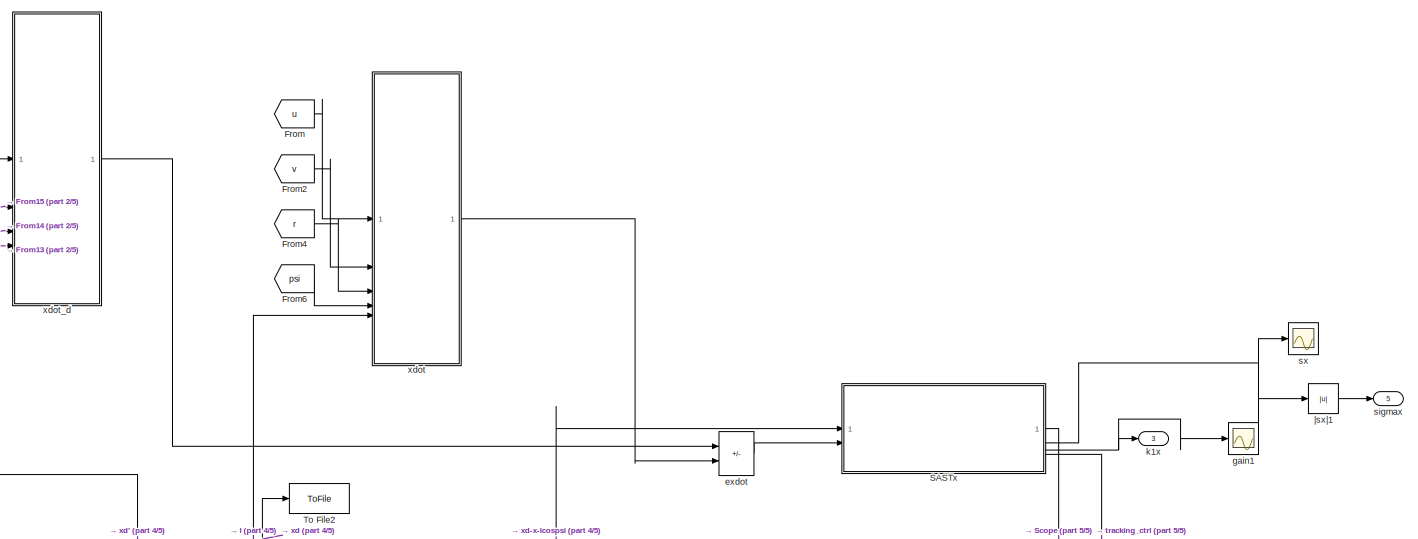
[diagram: track2 - part 1/5, top center region]
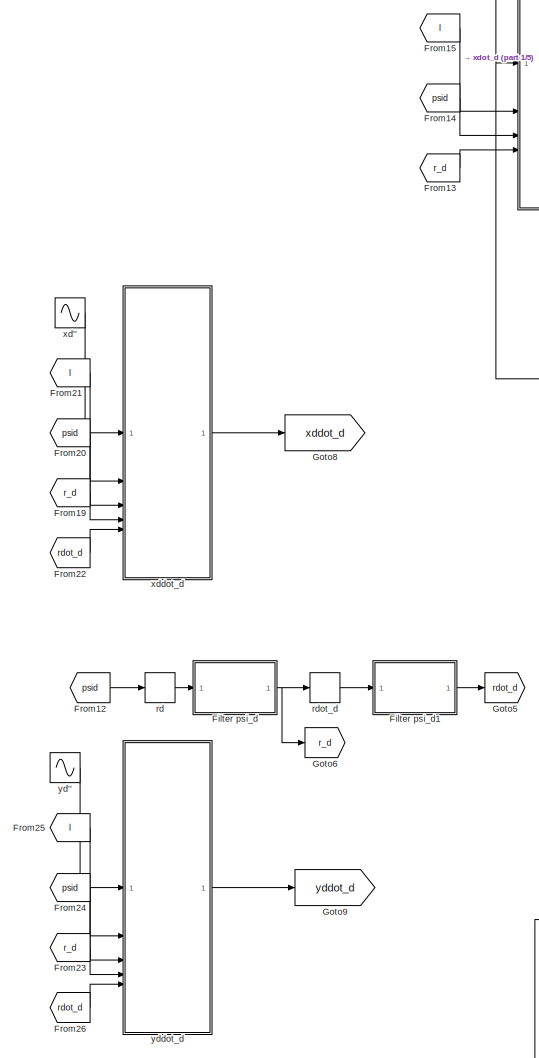
[diagram: track2 - part 2/5, top left region]
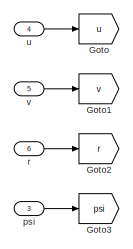
[diagram: track2 - part 3/5, top right region]
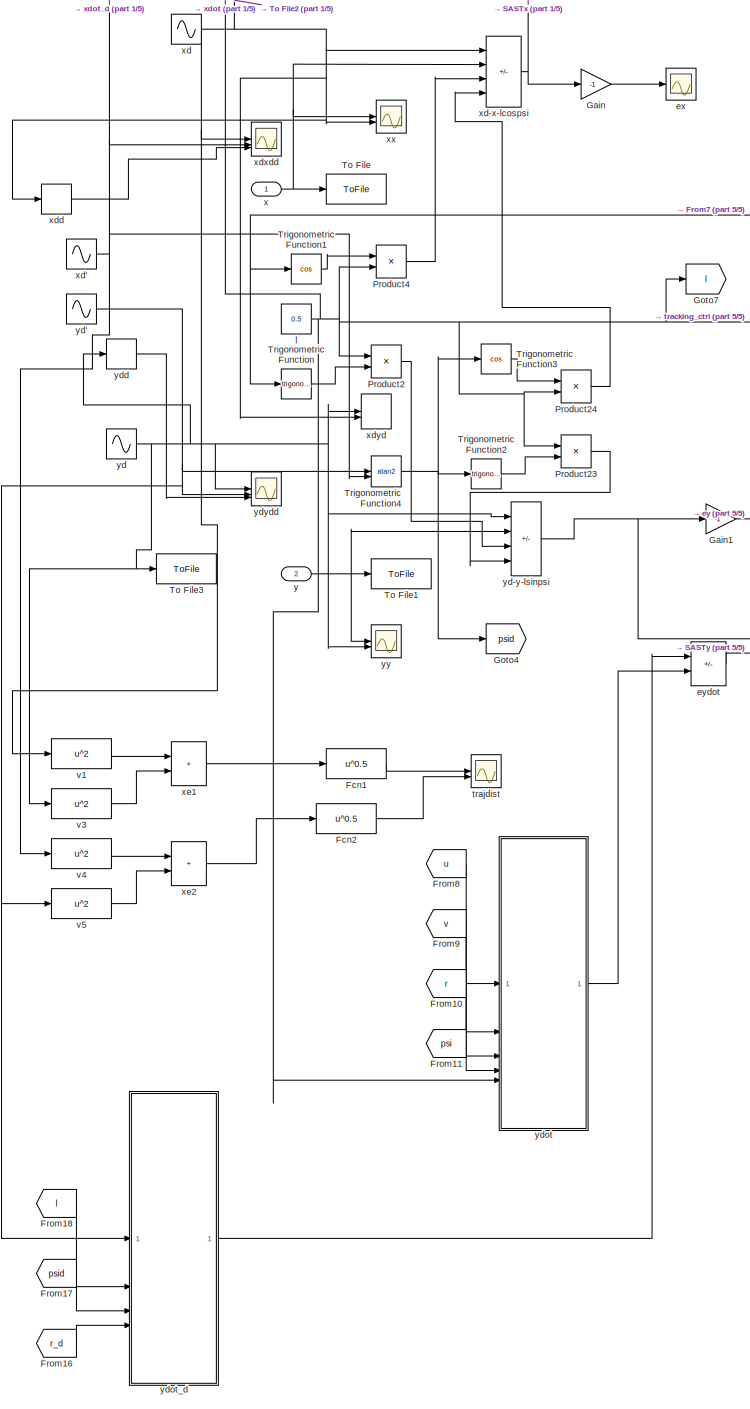
[diagram: track2 - part 4/5, central region]
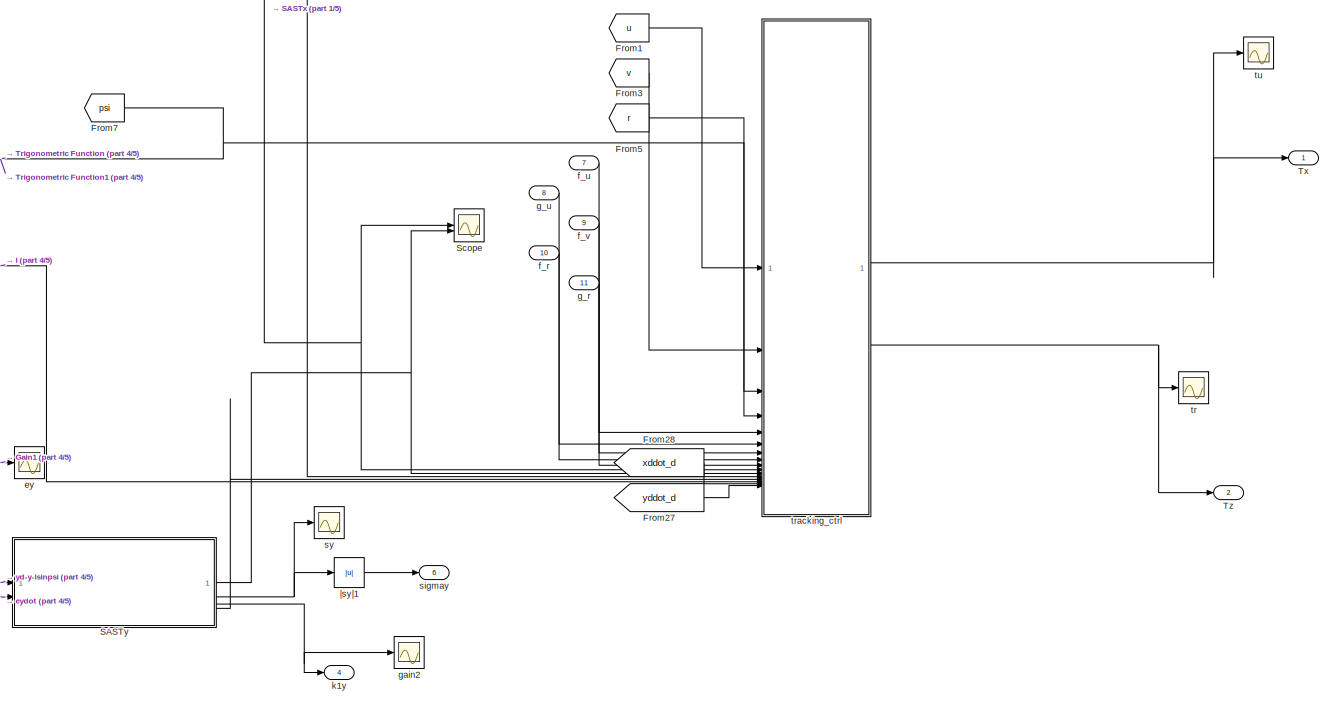
[diagram: track2 - part 5/5, middle right region]
BLOCK [SubSystem] track2
  Commented = on
BLOCK [Fcn] track2/Fcn1
  Expr = u^0.5
BLOCK [Fcn] track2/Fcn2
  Expr = u^0.5
BLOCK [SubSystem] track2/Filter psi_d
BLOCK [Gain] track2/Filter psi_d/Gain2
  Gain = 7
BLOCK [Gain] track2/Filter psi_d/Gain5
  Gain = 7
BLOCK [Gain] track2/Filter psi_d/Gain7
BLOCK [Gain] track2/Filter psi_d/Gain8
  Gain = 2
BLOCK [Inport] track2/Filter psi_d/In1
BLOCK [Integrator] track2/Filter psi_d/Integrator2
BLOCK [Integrator] track2/Filter psi_d/Integrator3
BLOCK [Outport] track2/Filter psi_d/Out1
  VectorParamsAs1DForOutWhenUnconnected = off
BLOCK [Sum] track2/Filter psi_d/Sum12
  Inputs = |+-
BLOCK [Sum] track2/Filter psi_d/Sum13
  Inputs = |+-
BLOCK [SubSystem] track2/Filter psi_d1
BLOCK [Gain] track2/Filter psi_d1/Gain2
  Gain = 7
BLOCK [Gain] track2/Filter psi_d1/Gain5
  Gain = 7
BLOCK [Gain] track2/Filter psi_d1/Gain7
BLOCK [Gain] track2/Filter psi_d1/Gain8
  Gain = 2
BLOCK [Inport] track2/Filter psi_d1/In1
BLOCK [Integrator] track2/Filter psi_d1/Integrator2
BLOCK [Integrator] track2/Filter psi_d1/Integrator3
BLOCK [Outport] track2/Filter psi_d1/Out1
  VectorParamsAs1DForOutWhenUnconnected = off
BLOCK [Sum] track2/Filter psi_d1/Sum12
  Inputs = |+-
BLOCK [Sum] track2/Filter psi_d1/Sum13
  Inputs = |+-
BLOCK [From] track2/From
  GotoTag = u
BLOCK [From] track2/From1
  GotoTag = u
BLOCK [From] track2/From10
  GotoTag = r
BLOCK [From] track2/From11
  GotoTag = psi
BLOCK [From] track2/From12
  GotoTag = psid
BLOCK [From] track2/From13
  GotoTag = r_d
BLOCK [From] track2/From14
  GotoTag = psid
BLOCK [From] track2/From15
  GotoTag = l
BLOCK [From] track2/From16
  GotoTag = r_d
BLOCK [From] track2/From17
  GotoTag = psid
BLOCK [From] track2/From18
  GotoTag = l
BLOCK [From] track2/From19
  GotoTag = r_d
BLOCK [From] track2/From2
  GotoTag = v
BLOCK [From] track2/From20
  GotoTag = psid
BLOCK [From] track2/From21
  GotoTag = l
BLOCK [From] track2/From22
  GotoTag = rdot_d
BLOCK [From] track2/From23
  GotoTag = r_d
BLOCK [From] track2/From24
  GotoTag = psid
BLOCK [From] track2/From25
  GotoTag = l
BLOCK [From] track2/From26
  GotoTag = rdot_d
BLOCK [From] track2/From27
  GotoTag = yddot_d
BLOCK [From] track2/From28
  GotoTag = xddot_d
BLOCK [From] track2/From3
  GotoTag = v
BLOCK [From] track2/From4
  GotoTag = r
BLOCK [From] track2/From5
  GotoTag = r
BLOCK [From] track2/From6
  GotoTag = psi
BLOCK [From] track2/From7
  GotoTag = psi
BLOCK [From] track2/From8
  GotoTag = u
BLOCK [From] track2/From9
  GotoTag = v
BLOCK [Gain] track2/Gain
  Gain = -1
BLOCK [Gain] track2/Gain1
  Gain = -1
BLOCK [Goto] track2/Goto
  GotoTag = u
BLOCK [Goto] track2/Goto1
  GotoTag = v
BLOCK [Goto] track2/Goto2
  GotoTag = r
BLOCK [Goto] track2/Goto3
  GotoTag = psi
BLOCK [Goto] track2/Goto4
  GotoTag = psid
BLOCK [Goto] track2/Goto5
  GotoTag = rdot_d
BLOCK [Goto] track2/Goto6
  GotoTag = r_d
BLOCK [Goto] track2/Goto7
  GotoTag = l
BLOCK [Goto] track2/Goto8
  GotoTag = xddot_d
BLOCK [Goto] track2/Goto9
  GotoTag = yddot_d
BLOCK [Product] track2/Product2
BLOCK [Product] track2/Product23
BLOCK [Product] track2/Product24
BLOCK [Product] track2/Product4
BLOCK [SubSystem] track2/SASTx
BLOCK [Abs] track2/SASTx/Abs5
  SaturateOnIntegerOverflow = off
BLOCK [Gain] track2/SASTx/Gain
  Gain = 2
BLOCK [Gain] track2/SASTx/Gain1
  Gain = 1/2
BLOCK [Integrator] track2/SASTx/Integrator
BLOCK [Product] track2/SASTx/K1signs|s|^1//2
  Inputs = ***
BLOCK [Product] track2/SASTx/K2sign(s)
BLOCK [Integrator] track2/SASTx/L
  InitialConditionSource = external
BLOCK [Constant] track2/SASTx/L0
  Value = 0.1
BLOCK [Sum] track2/SASTx/Ldot
  IconShape = rectangular
  Inputs = +-
BLOCK [Product] track2/SASTx/Le2
BLOCK [Math] track2/SASTx/Square
  Operator = square
BLOCK [Inport] track2/SASTx/e1
BLOCK [Inport] track2/SASTx/e2
  Port = 2
BLOCK [Fcn] track2/SASTx/g^1//2
  Expr = u^0.5
BLOCK [Product] track2/SASTx/g^1//2*L^2
BLOCK [Scope] track2/SASTx/gain
  Floating = off
  NumInputPorts = 1
  ScopeSpecificationString = Simulink.scopes.TimeScopeBlockCfg('CurrentConfiguration', extmgr.ConfigurationSet(extmgr.Configuration('Core','General UI',true),extmgr.Configuration('Core','Source UI',true),extmgr.Configuration('Sources','WiredSimulink',true,'DataLoggingVariableName','ScopeData1'),extmgr.Configuration('Visuals','Time Domain',true,'SerializedDisplays',{struct('MinYLimReal','-0.00125','MaxYLimReal','0.01126','YLab...<+1437ch>
BLOCK [Constant] track2/SASTx/gamma
BLOCK [Constant] track2/SASTx/k
  Value = 3
BLOCK [Outport] track2/SASTx/k1
  Port = 3
  VectorParamsAs1DForOutWhenUnconnected = off
BLOCK [Scope] track2/SASTx/k2
  Floating = off
  NumInputPorts = 1
BLOCK [Fcn] track2/SASTx/k^1//2
  Expr = u^0.5
BLOCK [Product] track2/SASTx/k^1//2*|s|^1//2
BLOCK [Constant] track2/SASTx/lambda
BLOCK [Product] track2/SASTx/lambda*e1
BLOCK [Outport] track2/SASTx/lambda*e2
  Port = 4
  VectorParamsAs1DForOutWhenUnconnected = off
BLOCK [Sum] track2/SASTx/s
  IconShape = rectangular
BLOCK [Scope] track2/SASTx/s1
  Floating = off
  NumInputPorts = 1
BLOCK [Outport] track2/SASTx/sigma
  Port = 2
  VectorParamsAs1DForOutWhenUnconnected = off
BLOCK [Signum] track2/SASTx/sign_s
BLOCK [Outport] track2/SASTx/u
  VectorParamsAs1DForOutWhenUnconnected = off
BLOCK [Sum] track2/SASTx/ua
  IconShape = rectangular
  Inputs = --
BLOCK [Fcn] track2/SASTx/|s|^1//2
  Expr = u^0.5
BLOCK [SubSystem] track2/SASTy
BLOCK [Abs] track2/SASTy/Abs5
  SaturateOnIntegerOverflow = off
BLOCK [Gain] track2/SASTy/Gain
  Gain = 2
BLOCK [Gain] track2/SASTy/Gain1
  Gain = 1/2
BLOCK [Integrator] track2/SASTy/Integrator
BLOCK [Product] track2/SASTy/K1signs|s|^1//2
  Inputs = ***
BLOCK [Product] track2/SASTy/K2sign(s)
BLOCK [Integrator] track2/SASTy/L
  InitialConditionSource = external
BLOCK [Constant] track2/SASTy/L0
  Value = 0.1
BLOCK [Sum] track2/SASTy/Ldot
  IconShape = rectangular
  Inputs = +-
BLOCK [Product] track2/SASTy/Le2
BLOCK [Math] track2/SASTy/Square
  Operator = square
BLOCK [Inport] track2/SASTy/e1
BLOCK [Inport] track2/SASTy/e2
  Port = 2
BLOCK [Fcn] track2/SASTy/g^1//2
  Expr = u^0.5
BLOCK [Product] track2/SASTy/g^1//2*L^2
BLOCK [Scope] track2/SASTy/gain
  Floating = off
  NumInputPorts = 1
  ScopeSpecificationString = Simulink.scopes.TimeScopeBlockCfg('CurrentConfiguration', extmgr.ConfigurationSet(extmgr.Configuration('Core','General UI',true),extmgr.Configuration('Core','Source UI',true),extmgr.Configuration('Sources','WiredSimulink',true,'DataLoggingVariableName','ScopeData1'),extmgr.Configuration('Visuals','Time Domain',true,'SerializedDisplays',{struct('MinYLimReal','-0.00125','MaxYLimReal','0.01126','YLab...<+1444ch>
BLOCK [Constant] track2/SASTy/gamma
BLOCK [Constant] track2/SASTy/k
  Value = 3
BLOCK [Outport] track2/SASTy/k1
  Port = 3
  VectorParamsAs1DForOutWhenUnconnected = off
BLOCK [Scope] track2/SASTy/k2
  Floating = off
  NumInputPorts = 1
BLOCK [Fcn] track2/SASTy/k^1//2
  Expr = u^0.5
BLOCK [Product] track2/SASTy/k^1//2*|s|^1//2
BLOCK [Constant] track2/SASTy/lambda
BLOCK [Product] track2/SASTy/lambda*e1
BLOCK [Outport] track2/SASTy/lambda*e2
  Port = 4
  VectorParamsAs1DForOutWhenUnconnected = off
BLOCK [Sum] track2/SASTy/s
  IconShape = rectangular
BLOCK [Scope] track2/SASTy/s1
  Floating = off
  NumInputPorts = 1
BLOCK [Outport] track2/SASTy/sigma
  Port = 2
  VectorParamsAs1DForOutWhenUnconnected = off
BLOCK [Signum] track2/SASTy/sign_s
BLOCK [Outport] track2/SASTy/u
  VectorParamsAs1DForOutWhenUnconnected = off
BLOCK [Sum] track2/SASTy/ua
  IconShape = rectangular
  Inputs = --
BLOCK [Fcn] track2/SASTy/|s|^1//2
  Expr = u^0.5
BLOCK [Scope] track2/Scope
  Floating = off
  NumInputPorts = 2
  ScopeSpecificationString = Simulink.scopes.TimeScopeBlockCfg('CurrentConfiguration', extmgr.ConfigurationSet(extmgr.Configuration('Core','General UI',true),extmgr.Configuration('Core','Source UI',true),extmgr.Configuration('Sources','WiredSimulink',true,'DataLoggingVariableName','ScopeData1'),extmgr.Configuration('Visuals','Time Domain',true,'SerializedDisplays',{struct('MinYLimReal','-1.9888','MaxYLimReal','2.21744','YLabe...<+1432ch>
BLOCK [ToFile] track2/To File
  Filename = xasmc.mat
BLOCK [ToFile] track2/To File1
  Filename = yasmc.mat
BLOCK [ToFile] track2/To File2
  Filename = xdasmc.mat
BLOCK [ToFile] track2/To File3
  Filename = ydasmc.mat
BLOCK [Trigonometry] track2/Trigonometric Function
BLOCK [Trigonometry] track2/Trigonometric Function1
  Operator = cos
BLOCK [Trigonometry] track2/Trigonometric Function2
BLOCK [Trigonometry] track2/Trigonometric Function3
  Operator = cos
BLOCK [Trigonometry] track2/Trigonometric Function4
  Operator = atan2
BLOCK [Outport] track2/Tx
BLOCK [Outport] track2/Tz
  Port = 2
BLOCK [Scope] track2/ex
  Floating = off
  NumInputPorts = 1
  ScopeSpecificationString = Simulink.scopes.TimeScopeBlockCfg('CurrentConfiguration', extmgr.ConfigurationSet(extmgr.Configuration('Core','General UI',true),extmgr.Configuration('Core','Source UI',true),extmgr.Configuration('Sources','WiredSimulink',true,'DataLoggingVariableName','ScopeData3'),extmgr.Configuration('Visuals','Time Domain',true,'SerializedDisplays',{struct('MinYLimReal','-1.0027','MaxYLimReal','0.7402','YLabel...<+1431ch>
BLOCK [Sum] track2/exdot
  IconShape = rectangular
  Inputs = +-
BLOCK [Scope] track2/ey
  Floating = off
  NumInputPorts = 1
  ScopeSpecificationString = Simulink.scopes.TimeScopeBlockCfg('CurrentConfiguration', extmgr.ConfigurationSet(extmgr.Configuration('Core','General UI',true),extmgr.Configuration('Core','Source UI',true),extmgr.Configuration('Sources','WiredSimulink',true,'DataLoggingVariableName','ScopeData2'),extmgr.Configuration('Visuals','Time Domain',true,'SerializedDisplays',{struct('MinYLimReal','-2.34211','MaxYLimReal','1.01572','YLab...<+1438ch>
BLOCK [Sum] track2/eydot
  IconShape = rectangular
  Inputs = +-
BLOCK [Inport] track2/f_r
  Port = 10
BLOCK [Inport] track2/f_u
  Port = 7
BLOCK [Inport] track2/f_v
  Port = 9
BLOCK [Inport] track2/g_r
  Port = 11
BLOCK [Inport] track2/g_u
  Port = 8
BLOCK [Scope] track2/gain1
  Floating = off
  NumInputPorts = 1
  ScopeSpecificationString = Simulink.scopes.TimeScopeBlockCfg('CurrentConfiguration', extmgr.ConfigurationSet(extmgr.Configuration('Core','General UI',true),extmgr.Configuration('Core','Source UI',true),extmgr.Configuration('Sources','WiredSimulink',true,'DataLoggingVariableName','ScopeData4'),extmgr.Configuration('Visuals','Time Domain',true,'SerializedDisplays',{struct('MinYLimReal','-0.11269','MaxYLimReal','1.11421','YLab...<+1440ch>
BLOCK [Scope] track2/gain2
  Floating = off
  NumInputPorts = 1
  ScopeSpecificationString = Simulink.scopes.TimeScopeBlockCfg('CurrentConfiguration', extmgr.ConfigurationSet(extmgr.Configuration('Core','General UI',true),extmgr.Configuration('Core','Source UI',true),extmgr.Configuration('Sources','WiredSimulink',true,'DataLoggingVariableName','ScopeData7'),extmgr.Configuration('Visuals','Time Domain',true,'SerializedDisplays',{struct('MinYLimReal','-0.11269','MaxYLimReal','1.11421','YLab...<+1440ch>
BLOCK [Outport] track2/k1x
  Port = 3
  VectorParamsAs1DForOutWhenUnconnected = off
BLOCK [Outport] track2/k1y
  Port = 4
  VectorParamsAs1DForOutWhenUnconnected = off
BLOCK [Constant] track2/l
  Value = 0.5
BLOCK [Inport] track2/psi
  Port = 3
BLOCK [Inport] track2/r
  Port = 6
BLOCK [Derivative] track2/rd
BLOCK [Derivative] track2/rdot_d
BLOCK [Outport] track2/sigmax
  Port = 5
  VectorParamsAs1DForOutWhenUnconnected = off
BLOCK [Outport] track2/sigmay
  Port = 6
  VectorParamsAs1DForOutWhenUnconnected = off
BLOCK [Scope] track2/sx
  Floating = off
  NumInputPorts = 1
  ScopeSpecificationString = Simulink.scopes.TimeScopeBlockCfg('CurrentConfiguration', extmgr.ConfigurationSet(extmgr.Configuration('Core','General UI',true),extmgr.Configuration('Core','Source UI',true),extmgr.Configuration('Sources','WiredSimulink',true,'DataLoggingVariableName','ScopeData1'),extmgr.Configuration('Visuals','Time Domain',true,'SerializedDisplays',{struct('MinYLimReal','-0.16069','MaxYLimReal','1.43847','YLab...<+1440ch>
BLOCK [Scope] track2/sy
  Floating = off
  NumInputPorts = 1
  ScopeSpecificationString = Simulink.scopes.TimeScopeBlockCfg('CurrentConfiguration', extmgr.ConfigurationSet(extmgr.Configuration('Core','General UI',true),extmgr.Configuration('Core','Source UI',true),extmgr.Configuration('Sources','WiredSimulink',true,'DataLoggingVariableName','ScopeData3'),extmgr.Configuration('Visuals','Time Domain',true,'SerializedDisplays',{struct('MinYLimReal','-0.70439','MaxYLimReal','1.74496','YLab...<+1436ch>
BLOCK [Scope] track2/tr
  Floating = off
  NumInputPorts = 1
  ScopeSpecificationString = Simulink.scopes.TimeScopeBlockCfg('CurrentConfiguration', extmgr.ConfigurationSet(extmgr.Configuration('Core','General UI',true),extmgr.Configuration('Core','Source UI',true),extmgr.Configuration('Sources','WiredSimulink',true,'DataLoggingVariableName','ScopeData4'),extmgr.Configuration('Visuals','Time Domain',true,'SerializedDisplays',{struct('MinYLimReal','-37.5051','MaxYLimReal','30.06561','YLa...<+1455ch>
BLOCK [SubSystem] track2/tracking_ctrl
  ErrorFcn = Stateflow.Translate.translate
  PermitHierarchicalResolution = ExplicitOnly
  SFBlockType = MATLAB Function
  TreatAsAtomicUnit = on
BLOCK [Demux] track2/tracking_ctrl/ Demux 
  Outputs = 1
BLOCK [S-Function] track2/tracking_ctrl/ SFunction 
  EnableBusSupport = on
  FunctionName = sf_sfun
  PortCounts = [16 3]
  SFcnIsStateOwnerBlock = off
  SFunctionDeploymentMode = off
  Tag = Stateflow S-Function 4
BLOCK [Terminator] track2/tracking_ctrl/ Terminator 
BLOCK [Inport] track2/tracking_ctrl/fr
  Port = 8
BLOCK [Inport] track2/tracking_ctrl/fu
  Port = 5
BLOCK [Inport] track2/tracking_ctrl/fv
  Port = 7
BLOCK [Inport] track2/tracking_ctrl/gr
  Port = 9
BLOCK [Inport] track2/tracking_ctrl/gu
  Port = 6
BLOCK [Inport] track2/tracking_ctrl/l
  Port = 14
BLOCK [Inport] track2/tracking_ctrl/le2x
  Port = 12
BLOCK [Inport] track2/tracking_ctrl/le2y
  Port = 13
BLOCK [Inport] track2/tracking_ctrl/psi
  Port = 4
BLOCK [Inport] track2/tracking_ctrl/r
  Port = 3
BLOCK [Outport] track2/tracking_ctrl/tr
  Port = 2
BLOCK [Outport] track2/tracking_ctrl/tu
BLOCK [Inport] track2/tracking_ctrl/u
BLOCK [Inport] track2/tracking_ctrl/uax
  Port = 10
BLOCK [Inport] track2/tracking_ctrl/uay
  Port = 11
BLOCK [Inport] track2/tracking_ctrl/v
  Port = 2
BLOCK [Inport] track2/tracking_ctrl/xddot_d
  Port = 15
BLOCK [Inport] track2/tracking_ctrl/yddot_d
  Port = 16
BLOCK [Scope] track2/trajdist
  Floating = off
  NumInputPorts = 2
  ScopeSpecificationString = Simulink.scopes.TimeScopeBlockCfg('CurrentConfiguration', extmgr.ConfigurationSet(extmgr.Configuration('Core','General UI',true),extmgr.Configuration('Core','Source UI',true),extmgr.Configuration('Sources','WiredSimulink',true,'DataLoggingVariableName','ScopeData4'),extmgr.Configuration('Visuals','Time Domain',true,'SerializedDisplays',{struct('MinYLimReal','-1.30724','MaxYLimReal','16.26906','YLa...<+1494ch>
BLOCK [Scope] track2/tu
  Floating = off
  NumInputPorts = 1
  ScopeSpecificationString = Simulink.scopes.TimeScopeBlockCfg('CurrentConfiguration', extmgr.ConfigurationSet(extmgr.Configuration('Core','General UI',true),extmgr.Configuration('Core','Source UI',true),extmgr.Configuration('Sources','WiredSimulink',true,'DataLoggingVariableName','ScopeData10'),extmgr.Configuration('Visuals','Time Domain',true,'SerializedDisplays',{struct('MinYLimReal','-27.47489','MaxYLimReal','158.67897','...<+1460ch>
BLOCK [Inport] track2/u
  Port = 4
BLOCK [Inport] track2/v
  Port = 5
BLOCK [Fcn] track2/v1
  Expr = u^2
BLOCK [Fcn] track2/v3
  Expr = u^2
BLOCK [Fcn] track2/v4
  Expr = u^2
BLOCK [Fcn] track2/v5
  Expr = u^2
BLOCK [Inport] track2/x
BLOCK [Sin] track2/xd
  Amplitude = 2.5
  Bias = 0.5
  Frequency = pi/15
  SampleTime = 0
BLOCK [Sin] track2/xd'
  Amplitude = 2.5*pi/15
  Frequency = pi/15
  Phase = pi/2
  SampleTime = 0
BLOCK [Sin] track2/xd''
  Amplitude = -2.5*(pi/15)*(pi/15)
  Frequency = pi/15
  SampleTime = 0
BLOCK [Sum] track2/xd-x-lcospsi
  IconShape = rectangular
  Inputs = +--+
BLOCK [Derivative] track2/xdd
BLOCK [SubSystem] track2/xddot_d
  ErrorFcn = Stateflow.Translate.translate
  PermitHierarchicalResolution = ExplicitOnly
  SFBlockType = MATLAB Function
  TreatAsAtomicUnit = on
BLOCK [Demux] track2/xddot_d/ Demux 
  Outputs = 1
BLOCK [S-Function] track2/xddot_d/ SFunction 
  EnableBusSupport = on
  FunctionName = sf_sfun
  PortCounts = [5 2]
  SFcnIsStateOwnerBlock = off
  SFunctionDeploymentMode = off
  Tag = Stateflow S-Function 5
BLOCK [Terminator] track2/xddot_d/ Terminator 
BLOCK [Inport] track2/xddot_d/l
  Port = 2
BLOCK [Inport] track2/xddot_d/psid
  Port = 3
BLOCK [Inport] track2/xddot_d/rd
  Port = 4
BLOCK [Inport] track2/xddot_d/rdot_d
  Port = 5
BLOCK [Outport] track2/xddot_d/xddot
BLOCK [Inport] track2/xddot_d/xddot_d
BLOCK [SubSystem] track2/xdot
  ErrorFcn = Stateflow.Translate.translate
  PermitHierarchicalResolution = ExplicitOnly
  SFBlockType = MATLAB Function
  TreatAsAtomicUnit = on
BLOCK [Demux] track2/xdot/ Demux 
  Outputs = 1
BLOCK [S-Function] track2/xdot/ SFunction 
  EnableBusSupport = on
  FunctionName = sf_sfun
  PortCounts = [5 2]
  SFcnIsStateOwnerBlock = off
  SFunctionDeploymentMode = off
  Tag = Stateflow S-Function 6
BLOCK [Terminator] track2/xdot/ Terminator 
BLOCK [Inport] track2/xdot/l
  Port = 5
BLOCK [Inport] track2/xdot/psi
  Port = 4
BLOCK [Inport] track2/xdot/r
  Port = 3
BLOCK [Inport] track2/xdot/u
BLOCK [Inport] track2/xdot/v
  Port = 2
BLOCK [Outport] track2/xdot/xdot
BLOCK [SubSystem] track2/xdot_d
  ErrorFcn = Stateflow.Translate.translate
  PermitHierarchicalResolution = ExplicitOnly
  SFBlockType = MATLAB Function
  TreatAsAtomicUnit = on
BLOCK [Demux] track2/xdot_d/ Demux 
  Outputs = 1
BLOCK [S-Function] track2/xdot_d/ SFunction 
  EnableBusSupport = on
  FunctionName = sf_sfun
  PortCounts = [4 2]
  SFcnIsStateOwnerBlock = off
  SFunctionDeploymentMode = off
  Tag = Stateflow S-Function 7
BLOCK [Terminator] track2/xdot_d/ Terminator 
BLOCK [Inport] track2/xdot_d/l
  Port = 2
BLOCK [Inport] track2/xdot_d/psid
  Port = 3
BLOCK [Inport] track2/xdot_d/rd
  Port = 4
BLOCK [Outport] track2/xdot_d/xdot
BLOCK [Inport] track2/xdot_d/xdot_d
BLOCK [Scope] track2/xdxdd
  Floating = off
  NumInputPorts = 3
  ScopeSpecificationString = Simulink.scopes.TimeScopeBlockCfg('CurrentConfiguration', extmgr.ConfigurationSet(extmgr.Configuration('Core','General UI',true),extmgr.Configuration('Core','Source UI',true),extmgr.Configuration('Sources','WiredSimulink',true,'DataLoggingVariableName','ScopeData2'),extmgr.Configuration('Visuals','Time Domain',true,'SerializedDisplays',{struct('MinYLimReal','-12.4','MaxYLimReal','12.6','YLabelReal...<+1495ch>
BLOCK [Record] track2/xdyd
  CompatibilityTag = XY
  FileSettingsInternal = {"entries":[{"content":{"excelSettings":{"content":{},"type":"Streamout.ExcelSettings"}},"type":"Streamout.FileSettingStorage","uuid":""}],"packageUris":["http:\/\/schema.mathworks.com\/mf0\/streamout_blocks\/R2020a"],"version":"1.0"}
  Layout = [1 1]
  SignalsInternal = {"entries":[{"content":{"signals":[{"content":{"blockPath":[],"dimensions":[1],"domain":"","lineColor":"#a2142f","plots":[1],"port":1,"signalID":8,"signalName":"yd"},"type":"RecordBlkView.Signal","uuid":""},{"content":{"blockPath":[],"dimensions":[1],"domain":"","lineColor":"#139fff","plots":[1],"port":2,"signalID":11,"signalName":"xd"},"type":"RecordBlkView.Signal","uuid":""}]},"type":"RecordBlkV...<+125ch>
  VisualizationBindings = {"xyplotplugin":{"info":[{"series":[{"bindingParametersList":[{"parameter":"X-Axis","signalID":8,"signalName":"yd"},{"parameter":"Y-Axis","signalID":11,"signalName":"xd"}],"seriesID":30671}],"subplotID":1}]}}
  st = -1
BLOCK [Sum] track2/xe1
  IconShape = rectangular
BLOCK [Sum] track2/xe2
  IconShape = rectangular
BLOCK [Scope] track2/xx
  Floating = off
  NumInputPorts = 2
  ScopeSpecificationString = Simulink.scopes.TimeScopeBlockCfg('CurrentConfiguration', extmgr.ConfigurationSet(extmgr.Configuration('Core','General UI',true),extmgr.Configuration('Core','Source UI',true),extmgr.Configuration('Sources','WiredSimulink',true,'DataLoggingVariableName','ScopeData3'),extmgr.Configuration('Visuals','Time Domain',true,'SerializedDisplays',{struct('MinYLimReal','-2.34886','MaxYLimReal','4.25965','YLab...<+1439ch>
BLOCK [Inport] track2/y
  Port = 2
BLOCK [Sin] track2/yd
  Amplitude = 7
  Bias = -7.5
  Frequency = pi/30
  Phase = pi/2
  SampleTime = 0
BLOCK [Sin] track2/yd'
  Amplitude = -7*pi/30
  Frequency = pi/30
  SampleTime = 0
BLOCK [Sin] track2/yd''
  Amplitude = -7*(pi/30)*(pi/30)
  Frequency = pi/30
  Phase = pi/2
  SampleTime = 0
BLOCK [Sum] track2/yd-y-lsinpsi
  IconShape = rectangular
  Inputs = +--+
BLOCK [Derivative] track2/ydd
BLOCK [SubSystem] track2/yddot_d
  ErrorFcn = Stateflow.Translate.translate
  PermitHierarchicalResolution = ExplicitOnly
  SFBlockType = MATLAB Function
  TreatAsAtomicUnit = on
BLOCK [Demux] track2/yddot_d/ Demux 
  Outputs = 1
BLOCK [S-Function] track2/yddot_d/ SFunction 
  EnableBusSupport = on
  FunctionName = sf_sfun
  PortCounts = [5 2]
  SFcnIsStateOwnerBlock = off
  SFunctionDeploymentMode = off
  Tag = Stateflow S-Function 8
BLOCK [Terminator] track2/yddot_d/ Terminator 
BLOCK [Inport] track2/yddot_d/l
  Port = 2
BLOCK [Inport] track2/yddot_d/psid
  Port = 3
BLOCK [Inport] track2/yddot_d/rd
  Port = 4
BLOCK [Inport] track2/yddot_d/rdot_d
  Port = 5
BLOCK [Outport] track2/yddot_d/yddot
BLOCK [Inport] track2/yddot_d/yddot_d
BLOCK [SubSystem] track2/ydot
  ErrorFcn = Stateflow.Translate.translate
  PermitHierarchicalResolution = ExplicitOnly
  SFBlockType = MATLAB Function
  TreatAsAtomicUnit = on
BLOCK [Demux] track2/ydot/ Demux 
  Outputs = 1
BLOCK [S-Function] track2/ydot/ SFunction 
  EnableBusSupport = on
  FunctionName = sf_sfun
  PortCounts = [5 2]
  SFcnIsStateOwnerBlock = off
  SFunctionDeploymentMode = off
  Tag = Stateflow S-Function 9
BLOCK [Terminator] track2/ydot/ Terminator 
BLOCK [Inport] track2/ydot/l
  Port = 5
BLOCK [Inport] track2/ydot/psi
  Port = 4
BLOCK [Inport] track2/ydot/r
  Port = 3
BLOCK [Inport] track2/ydot/u
BLOCK [Inport] track2/ydot/v
  Port = 2
BLOCK [Outport] track2/ydot/ydot
BLOCK [SubSystem] track2/ydot_d
  ErrorFcn = Stateflow.Translate.translate
  PermitHierarchicalResolution = ExplicitOnly
  SFBlockType = MATLAB Function
  TreatAsAtomicUnit = on
BLOCK [Demux] track2/ydot_d/ Demux 
  Outputs = 1
BLOCK [S-Function] track2/ydot_d/ SFunction 
  EnableBusSupport = on
  FunctionName = sf_sfun
  PortCounts = [4 2]
  SFcnIsStateOwnerBlock = off
  SFunctionDeploymentMode = off
  Tag = Stateflow S-Function 10
BLOCK [Terminator] track2/ydot_d/ Terminator 
BLOCK [Inport] track2/ydot_d/l
  Port = 2
BLOCK [Inport] track2/ydot_d/psid
  Port = 3
BLOCK [Inport] track2/ydot_d/rd
  Port = 4
BLOCK [Outport] track2/ydot_d/ydot
BLOCK [Inport] track2/ydot_d/ydot_d
BLOCK [Scope] track2/ydydd
  Floating = off
  NumInputPorts = 3
  ScopeSpecificationString = Simulink.scopes.TimeScopeBlockCfg('CurrentConfiguration', extmgr.ConfigurationSet(extmgr.Configuration('Core','General UI',true),extmgr.Configuration('Core','Source UI',true),extmgr.Configuration('Sources','WiredSimulink',true,'DataLoggingVariableName','ScopeData1'),extmgr.Configuration('Visuals','Time Domain',true,'SerializedDisplays',{struct('MinYLimReal','-16.06663','MaxYLimReal','2.59967','YLa...<+1518ch>
BLOCK [Scope] track2/yy
  Floating = off
  NumInputPorts = 2
  ScopeSpecificationString = Simulink.scopes.TimeScopeBlockCfg('CurrentConfiguration', extmgr.ConfigurationSet(extmgr.Configuration('Core','General UI',true),extmgr.Configuration('Core','Source UI',true),extmgr.Configuration('Sources','WiredSimulink',true,'DataLoggingVariableName','ScopeData6'),extmgr.Configuration('Visuals','Time Domain',true,'SerializedDisplays',{struct('MinYLimReal','-16.96577','MaxYLimReal','1.91685','YLa...<+1447ch>
BLOCK [Abs] track2/|sx|1
  SaturateOnIntegerOverflow = off
BLOCK [Abs] track2/|sy|1
  SaturateOnIntegerOverflow = off
ANNOTATION (root): Dynamic Model
ANNOTATION (root): original
LINE Add4:1 -> Add:2
LINE Add:1 -> Gain:1
LINE Constant10:1 -> Control:7
LINE Constant11:1 -> Control:8
LINE Constant12:1 -> Control:9
LINE Constant13:1 -> Control:15
LINE Constant14:1 -> Control:14
LINE Constant15:1 -> Control:16
LINE Constant16:1 -> Control:17
LINE Constant17:1 -> Control:19
LINE Constant18:1 -> Control:10
LINE Control:1 -> Goto:1
LINE Control:2 -> Goto24:1
LINE Control:3 -> Goto25:1
LINE Control:4 -> Goto26:1
LINE Control:5 -> Goto27:1
LINE Demux10:1 -> track1:4
LINE Demux10:2 -> track1:5
LINE Demux10:3 -> track1:6
LINE Demux11:1 -> track1:1
LINE Demux11:2 -> track1:2
LINE Demux11:3 -> track1:3
LINE Demux8:1 -> Control:1
LINE Demux8:2 -> Control:2
LINE Demux8:3 -> Control:3
LINE Demux9:1 -> Control:4
LINE Demux9:2 -> Control:5
LINE Demux9:3 -> Control:6
LINE From30:1 -> To Workspace1:1
LINE From47:1 -> Demux8:1
LINE From48:1 -> Demux9:1
LINE From49:1 -> Control:11
LINE From4:1 -> To Workspace:1
LINE From50:1 -> Control:12
LINE From51:1 -> Control:13
LINE From52:1 -> Control:18
LINE From53:1 -> track1:9
LINE From54:1 -> track1:7
LINE From55:1 -> track1:8
LINE From56:1 -> track1:10
LINE From57:1 -> track1:11
LINE From58:1 -> Demux10:1
LINE From59:1 -> Demux11:1
LINE From:1 -> Add:1
LINE Gain:1 -> Integrator:1
NET Integrator4:1 -> Goto1:1, MATLAB Function:1
NET Integrator:1 -> Goto4:1, MATLAB Function1:1, MATLAB Function2:1, MATLAB Function:2
LINE MATLAB Function1:1 -> Add4:1
LINE MATLAB Function2:1 -> Add4:2
LINE MATLAB Function2:2 -> Goto20:1
LINE MATLAB Function2:3 -> Goto21:1
LINE MATLAB Function2:4 -> Goto22:1
LINE MATLAB Function2:5 -> Goto23:1
LINE MATLAB Function:1 -> Integrator4:1
LINE Mux4:1 -> Goto13:1
LINE track1/Clock1:1 -> track1/Polynomial Trajectory:1
LINE track1/Constant1:1 -> track1/MATLAB Function:17
LINE track1/Constant:1 -> track1/MATLAB Function:3
LINE track1/Demux:1 -> track1/Goto12:1
LINE track1/Demux:2 -> track1/Goto13:1
LINE track1/Derivative1:1 -> track1/Goto17:1
NET track1/Derivative2:1 -> track1/Derivative3:1, track1/Goto18:1
LINE track1/Derivative3:1 -> track1/Goto19:1
NET track1/Derivative:1 -> track1/Derivative1:1, track1/Goto16:1
LINE track1/Filter psi_d/Gain2:1 -> track1/Filter psi_d/Sum13:1
LINE track1/Filter psi_d/Gain5:1 -> track1/Filter psi_d/Integrator2:1
LINE track1/Filter psi_d/Gain7:1 -> track1/Filter psi_d/Gain8:1
LINE track1/Filter psi_d/Gain8:1 -> track1/Filter psi_d/Sum13:2
LINE track1/Filter psi_d/In1:1 -> track1/Filter psi_d/Sum12:1
NET track1/Filter psi_d/Integrator2:1 -> track1/Filter psi_d/Gain7:1, track1/Filter psi_d/Integrator3:1
NET track1/Filter psi_d/Integrator3:1 -> track1/Filter psi_d/Out1:1, track1/Filter psi_d/Sum12:2
LINE track1/Filter psi_d/Sum12:1 -> track1/Filter psi_d/Gain2:1
LINE track1/Filter psi_d/Sum13:1 -> track1/Filter psi_d/Gain5:1
LINE track1/Filter psi_d1/Gain2:1 -> track1/Filter psi_d1/Sum13:1
LINE track1/Filter psi_d1/Gain5:1 -> track1/Filter psi_d1/Integrator2:1
LINE track1/Filter psi_d1/Gain7:1 -> track1/Filter psi_d1/Gain8:1
LINE track1/Filter psi_d1/Gain8:1 -> track1/Filter psi_d1/Sum13:2
LINE track1/Filter psi_d1/In1:1 -> track1/Filter psi_d1/Sum12:1
NET track1/Filter psi_d1/Integrator2:1 -> track1/Filter psi_d1/Gain7:1, track1/Filter psi_d1/Integrator3:1
NET track1/Filter psi_d1/Integrator3:1 -> track1/Filter psi_d1/Out1:1, track1/Filter psi_d1/Sum12:2
LINE track1/Filter psi_d1/Sum12:1 -> track1/Filter psi_d1/Gain2:1
LINE track1/Filter psi_d1/Sum13:1 -> track1/Filter psi_d1/Gain5:1
LINE track1/Filter psi_d1:1 -> track1/Goto5:1
NET track1/Filter psi_d:1 -> track1/Goto6:1, track1/rdot_d:1
LINE track1/From10:1 -> track1/ydot:3
LINE track1/From11:1 -> track1/ydot:4
LINE track1/From12:1 -> track1/rd:1
LINE track1/From13:1 -> track1/xdot_d:4
LINE track1/From14:1 -> track1/xdot_d:3
LINE track1/From15:1 -> track1/xdot_d:2
LINE track1/From16:1 -> track1/ydot_d:4
LINE track1/From17:1 -> track1/ydot_d:3
LINE track1/From18:1 -> track1/ydot_d:2
LINE track1/From19:1 -> track1/xddot_d:4
LINE track1/From1:1 -> track1/tracking_ctrl:1
LINE track1/From20:1 -> track1/xddot_d:3
LINE track1/From21:1 -> track1/xddot_d:2
LINE track1/From22:1 -> track1/xddot_d:5
LINE track1/From23:1 -> track1/yddot_d:4
LINE track1/From24:1 -> track1/yddot_d:3
LINE track1/From25:1 -> track1/yddot_d:2
LINE track1/From26:1 -> track1/yddot_d:5
LINE track1/From27:1 -> track1/tracking_ctrl:16
LINE track1/From28:1 -> track1/tracking_ctrl:15
LINE track1/From29:1 -> track1/Derivative:1
LINE track1/From2:1 -> track1/xdot:2
LINE track1/From30:1 -> track1/Derivative2:1
NET track1/From31:1 -> track1/Trigonometric Function4:1, track1/ydot_d:1
NET track1/From32:1 -> track1/To File3:1, track1/yd-y-lsinpsi:1, track1/yy:2
LINE track1/From33:1 -> track1/xddot_d:1
LINE track1/From34:1 -> track1/yddot_d:1
NET track1/From35:1 -> track1/To File2:1, track1/xd-x-lcospsi:1, track1/xx:2
NET track1/From36:1 -> track1/Trigonometric Function4:2, track1/xdot_d:1
LINE track1/From37:1 -> track1/MATLAB Function:2
LINE track1/From38:1 -> track1/MATLAB Function:4
LINE track1/From39:1 -> track1/MATLAB Function:5
LINE track1/From3:1 -> track1/tracking_ctrl:2
LINE track1/From40:1 -> track1/MATLAB Function:6
LINE track1/From41:1 -> track1/MATLAB Function:8
LINE track1/From42:1 -> track1/MATLAB Function:9
LINE track1/From43:1 -> track1/MATLAB Function:10
LINE track1/From44:1 -> track1/MATLAB Function:11
LINE track1/From45:1 -> track1/MATLAB Function:12
LINE track1/From46:1 -> track1/MATLAB Function:14
LINE track1/From47:1 -> track1/MATLAB Function:16
LINE track1/From48:1 -> track1/MATLAB Function:15
LINE track1/From49:1 -> track1/MATLAB Function:13
LINE track1/From4:1 -> track1/xdot:3
LINE track1/From50:1 -> track1/MATLAB Function:7
LINE track1/From51:1 -> track1/MATLAB Function:1
LINE track1/From5:1 -> track1/tracking_ctrl:3
LINE track1/From6:1 -> track1/xdot:4
NET track1/From7:1 -> track1/Trigonometric Function1:1, track1/Trigonometric Function:1, track1/tracking_ctrl:4
LINE track1/From8:1 -> track1/ydot:1
LINE track1/From9:1 -> track1/ydot:2
LINE track1/From:1 -> track1/xdot:1
LINE track1/Gain1:1 -> track1/ey:1
LINE track1/Gain:1 -> track1/ex:1
LINE track1/MATLAB Function:1 -> track1/SASTy:1
LINE track1/MATLAB Function:2 -> track1/SASTy:2
LINE track1/Polynomial Trajectory:1 -> track1/Demux:1
LINE track1/Product23:1 -> track1/yd-y-lsinpsi:4
LINE track1/Product24:1 -> track1/xd-x-lcospsi:4
LINE track1/Product2:1 -> track1/yd-y-lsinpsi:3
LINE track1/Product4:1 -> track1/xd-x-lcospsi:3
NET track1/SASTx/Abs5:1 -> track1/SASTx/sigma:1, track1/SASTx/|s|^1//2:1
NET track1/SASTx/Gain1:1 -> track1/SASTx/K2sign(s):2, track1/SASTx/k2:1
NET track1/SASTx/Gain:1 -> track1/SASTx/K1signs|s|^1//2:1, track1/SASTx/gain:1
LINE track1/SASTx/Integrator:1 -> track1/SASTx/ua:2
LINE track1/SASTx/K1signs|s|^1//2:1 -> track1/SASTx/ua:1
LINE track1/SASTx/K2sign(s):1 -> track1/SASTx/Integrator:1
LINE track1/SASTx/L0:1 -> track1/SASTx/L:2
NET track1/SASTx/L:1 -> track1/SASTx/Gain:1, track1/SASTx/Square:1, track1/SASTx/k1:1
LINE track1/SASTx/Ldot:1 -> track1/SASTx/L:1
LINE track1/SASTx/Le2:1 -> track1/SASTx/lambda*e2:1
NET track1/SASTx/Square:1 -> track1/SASTx/Gain1:1, track1/SASTx/g^1//2*L^2:2
LINE track1/SASTx/e1:1 -> track1/SASTx/lambda*e1:1
NET track1/SASTx/e2:1 -> track1/SASTx/Le2:2, track1/SASTx/s:1
LINE track1/SASTx/g^1//2*L^2:1 -> track1/SASTx/Ldot:2
LINE track1/SASTx/g^1//2:1 -> track1/SASTx/g^1//2*L^2:1
LINE track1/SASTx/gamma:1 -> track1/SASTx/g^1//2:1
LINE track1/SASTx/k:1 -> track1/SASTx/k^1//2:1
LINE track1/SASTx/k^1//2*|s|^1//2:1 -> track1/SASTx/Ldot:1
LINE track1/SASTx/k^1//2:1 -> track1/SASTx/k^1//2*|s|^1//2:1
LINE track1/SASTx/lambda*e1:1 -> track1/SASTx/s:2
NET track1/SASTx/lambda:1 -> track1/SASTx/Le2:1, track1/SASTx/lambda*e1:2
NET track1/SASTx/s:1 -> track1/SASTx/Abs5:1, track1/SASTx/s1:1, track1/SASTx/sign_s:1
NET track1/SASTx/sign_s:1 -> track1/SASTx/K1signs|s|^1//2:2, track1/SASTx/K2sign(s):1
LINE track1/SASTx/ua:1 -> track1/SASTx/u:1
NET track1/SASTx/|s|^1//2:1 -> track1/SASTx/K1signs|s|^1//2:3, track1/SASTx/k^1//2*|s|^1//2:2
NET track1/SASTx:1 -> track1/Scope:1, track1/tracking_ctrl:10
NET track1/SASTx:2 -> track1/sx:1, track1/|sx|1:1
NET track1/SASTx:3 -> track1/gain1:1, track1/k1x:1
LINE track1/SASTx:4 -> track1/tracking_ctrl:12
NET track1/SASTy/Abs5:1 -> track1/SASTy/sigma:1, track1/SASTy/|s|^1//2:1
NET track1/SASTy/Gain1:1 -> track1/SASTy/K2sign(s):2, track1/SASTy/k2:1
NET track1/SASTy/Gain:1 -> track1/SASTy/K1signs|s|^1//2:1, track1/SASTy/gain:1
LINE track1/SASTy/Integrator:1 -> track1/SASTy/ua:2
LINE track1/SASTy/K1signs|s|^1//2:1 -> track1/SASTy/ua:1
LINE track1/SASTy/K2sign(s):1 -> track1/SASTy/Integrator:1
LINE track1/SASTy/L0:1 -> track1/SASTy/L:2
NET track1/SASTy/L:1 -> track1/SASTy/Gain:1, track1/SASTy/Square:1, track1/SASTy/k1:1
LINE track1/SASTy/Ldot:1 -> track1/SASTy/L:1
LINE track1/SASTy/Le2:1 -> track1/SASTy/lambda*e2:1
NET track1/SASTy/Square:1 -> track1/SASTy/Gain1:1, track1/SASTy/g^1//2*L^2:2
LINE track1/SASTy/e1:1 -> track1/SASTy/lambda*e1:1
NET track1/SASTy/e2:1 -> track1/SASTy/Le2:2, track1/SASTy/s:1
LINE track1/SASTy/g^1//2*L^2:1 -> track1/SASTy/Ldot:2
LINE track1/SASTy/g^1//2:1 -> track1/SASTy/g^1//2*L^2:1
LINE track1/SASTy/gamma:1 -> track1/SASTy/g^1//2:1
LINE track1/SASTy/k:1 -> track1/SASTy/k^1//2:1
LINE track1/SASTy/k^1//2*|s|^1//2:1 -> track1/SASTy/Ldot:1
LINE track1/SASTy/k^1//2:1 -> track1/SASTy/k^1//2*|s|^1//2:1
LINE track1/SASTy/lambda*e1:1 -> track1/SASTy/s:2
NET track1/SASTy/lambda:1 -> track1/SASTy/Le2:1, track1/SASTy/lambda*e1:2
NET track1/SASTy/s:1 -> track1/SASTy/Abs5:1, track1/SASTy/s1:1, track1/SASTy/sign_s:1
NET track1/SASTy/sign_s:1 -> track1/SASTy/K1signs|s|^1//2:2, track1/SASTy/K2sign(s):1
LINE track1/SASTy/ua:1 -> track1/SASTy/u:1
NET track1/SASTy/|s|^1//2:1 -> track1/SASTy/K1signs|s|^1//2:3, track1/SASTy/k^1//2*|s|^1//2:2
NET track1/SASTy:1 -> track1/Scope:2, track1/tracking_ctrl:11
NET track1/SASTy:2 -> track1/sy:1, track1/|sy|1:1
NET track1/SASTy:3 -> track1/gain2:1, track1/k1y:1
LINE track1/SASTy:4 -> track1/tracking_ctrl:13
LINE track1/Trigonometric Function1:1 -> track1/Product4:1
LINE track1/Trigonometric Function2:1 -> track1/Product23:2
LINE track1/Trigonometric Function3:1 -> track1/Product24:1
NET track1/Trigonometric Function4:1 -> track1/Goto4:1, track1/Trigonometric Function2:1, track1/Trigonometric Function3:1
LINE track1/Trigonometric Function:1 -> track1/Product2:2
LINE track1/exdot:1 -> track1/SASTx:2
LINE track1/f_r:1 -> track1/tracking_ctrl:8
LINE track1/f_u:1 -> track1/tracking_ctrl:5
LINE track1/f_v:1 -> track1/tracking_ctrl:7
LINE track1/g_r:1 -> track1/tracking_ctrl:9
LINE track1/g_u:1 -> track1/tracking_ctrl:6
NET track1/l:1 -> track1/Goto7:1, track1/Product23:1, track1/Product24:2, track1/Product2:1, track1/Product4:2, track1/tracking_ctrl:14, track1/xdot:5, track1/ydot:5
LINE track1/psi:1 -> track1/Goto3:1
LINE track1/r:1 -> track1/Goto2:1
LINE track1/rd:1 -> track1/Filter psi_d:1
LINE track1/rdot_d:1 -> track1/Filter psi_d1:1
NET track1/tracking_ctrl:1 -> track1/Tx:1, track1/tu:1
NET track1/tracking_ctrl:2 -> track1/Tz:1, track1/tr:1
LINE track1/u:1 -> track1/Goto:1
LINE track1/v:1 -> track1/Goto1:1
NET track1/x:1 -> track1/Goto11:1, track1/To File:1, track1/xd-x-lcospsi:2, track1/xx:1
NET track1/xd-x-lcospsi:1 -> track1/Gain:1, track1/SASTx:1
LINE track1/xddot_d:1 -> track1/Goto8:1
LINE track1/xdot:1 -> track1/exdot:2
LINE track1/xdot_d:1 -> track1/exdot:1
NET track1/y:1 -> track1/Goto10:1, track1/To File1:1, track1/yd-y-lsinpsi:2, track1/yy:1
LINE track1/yd-y-lsinpsi:1 -> track1/Gain1:1
LINE track1/yddot_d:1 -> track1/Goto9:1
LINE track1/ydot:1 -> track1/eydot:2
LINE track1/ydot_d:1 -> track1/eydot:1
LINE track1/|sx|1:1 -> track1/sigmax:1
LINE track1/|sy|1:1 -> track1/sigmay:1
LINE track1:1 -> Mux4:1
LINE track1:2 -> Mux4:3
LINE track2/Fcn1:1 -> track2/trajdist:1
LINE track2/Fcn2:1 -> track2/trajdist:2
LINE track2/Filter psi_d/Gain2:1 -> track2/Filter psi_d/Sum13:1
LINE track2/Filter psi_d/Gain5:1 -> track2/Filter psi_d/Integrator2:1
LINE track2/Filter psi_d/Gain7:1 -> track2/Filter psi_d/Gain8:1
LINE track2/Filter psi_d/Gain8:1 -> track2/Filter psi_d/Sum13:2
LINE track2/Filter psi_d/In1:1 -> track2/Filter psi_d/Sum12:1
NET track2/Filter psi_d/Integrator2:1 -> track2/Filter psi_d/Gain7:1, track2/Filter psi_d/Integrator3:1
NET track2/Filter psi_d/Integrator3:1 -> track2/Filter psi_d/Out1:1, track2/Filter psi_d/Sum12:2
LINE track2/Filter psi_d/Sum12:1 -> track2/Filter psi_d/Gain2:1
LINE track2/Filter psi_d/Sum13:1 -> track2/Filter psi_d/Gain5:1
LINE track2/Filter psi_d1/Gain2:1 -> track2/Filter psi_d1/Sum13:1
LINE track2/Filter psi_d1/Gain5:1 -> track2/Filter psi_d1/Integrator2:1
LINE track2/Filter psi_d1/Gain7:1 -> track2/Filter psi_d1/Gain8:1
LINE track2/Filter psi_d1/Gain8:1 -> track2/Filter psi_d1/Sum13:2
LINE track2/Filter psi_d1/In1:1 -> track2/Filter psi_d1/Sum12:1
NET track2/Filter psi_d1/Integrator2:1 -> track2/Filter psi_d1/Gain7:1, track2/Filter psi_d1/Integrator3:1
NET track2/Filter psi_d1/Integrator3:1 -> track2/Filter psi_d1/Out1:1, track2/Filter psi_d1/Sum12:2
LINE track2/Filter psi_d1/Sum12:1 -> track2/Filter psi_d1/Gain2:1
LINE track2/Filter psi_d1/Sum13:1 -> track2/Filter psi_d1/Gain5:1
LINE track2/Filter psi_d1:1 -> track2/Goto5:1
NET track2/Filter psi_d:1 -> track2/Goto6:1, track2/rdot_d:1
LINE track2/From10:1 -> track2/ydot:3
LINE track2/From11:1 -> track2/ydot:4
LINE track2/From12:1 -> track2/rd:1
LINE track2/From13:1 -> track2/xdot_d:4
LINE track2/From14:1 -> track2/xdot_d:3
LINE track2/From15:1 -> track2/xdot_d:2
LINE track2/From16:1 -> track2/ydot_d:4
LINE track2/From17:1 -> track2/ydot_d:3
LINE track2/From18:1 -> track2/ydot_d:2
LINE track2/From19:1 -> track2/xddot_d:4
LINE track2/From1:1 -> track2/tracking_ctrl:1
LINE track2/From20:1 -> track2/xddot_d:3
LINE track2/From21:1 -> track2/xddot_d:2
LINE track2/From22:1 -> track2/xddot_d:5
LINE track2/From23:1 -> track2/yddot_d:4
LINE track2/From24:1 -> track2/yddot_d:3
LINE track2/From25:1 -> track2/yddot_d:2
LINE track2/From26:1 -> track2/yddot_d:5
LINE track2/From27:1 -> track2/tracking_ctrl:16
LINE track2/From28:1 -> track2/tracking_ctrl:15
LINE track2/From2:1 -> track2/xdot:2
LINE track2/From3:1 -> track2/tracking_ctrl:2
LINE track2/From4:1 -> track2/xdot:3
LINE track2/From5:1 -> track2/tracking_ctrl:3
LINE track2/From6:1 -> track2/xdot:4
NET track2/From7:1 -> track2/Trigonometric Function1:1, track2/Trigonometric Function:1, track2/tracking_ctrl:4
LINE track2/From8:1 -> track2/ydot:1
LINE track2/From9:1 -> track2/ydot:2
LINE track2/From:1 -> track2/xdot:1
LINE track2/Gain1:1 -> track2/ey:1
LINE track2/Gain:1 -> track2/ex:1
LINE track2/Product23:1 -> track2/yd-y-lsinpsi:4
LINE track2/Product24:1 -> track2/xd-x-lcospsi:4
LINE track2/Product2:1 -> track2/yd-y-lsinpsi:3
LINE track2/Product4:1 -> track2/xd-x-lcospsi:3
NET track2/SASTx/Abs5:1 -> track2/SASTx/sigma:1, track2/SASTx/|s|^1//2:1
NET track2/SASTx/Gain1:1 -> track2/SASTx/K2sign(s):2, track2/SASTx/k2:1
NET track2/SASTx/Gain:1 -> track2/SASTx/K1signs|s|^1//2:1, track2/SASTx/gain:1
LINE track2/SASTx/Integrator:1 -> track2/SASTx/ua:2
LINE track2/SASTx/K1signs|s|^1//2:1 -> track2/SASTx/ua:1
LINE track2/SASTx/K2sign(s):1 -> track2/SASTx/Integrator:1
LINE track2/SASTx/L0:1 -> track2/SASTx/L:2
NET track2/SASTx/L:1 -> track2/SASTx/Gain:1, track2/SASTx/Square:1, track2/SASTx/k1:1
LINE track2/SASTx/Ldot:1 -> track2/SASTx/L:1
LINE track2/SASTx/Le2:1 -> track2/SASTx/lambda*e2:1
NET track2/SASTx/Square:1 -> track2/SASTx/Gain1:1, track2/SASTx/g^1//2*L^2:2
LINE track2/SASTx/e1:1 -> track2/SASTx/lambda*e1:1
NET track2/SASTx/e2:1 -> track2/SASTx/Le2:2, track2/SASTx/s:1
LINE track2/SASTx/g^1//2*L^2:1 -> track2/SASTx/Ldot:2
LINE track2/SASTx/g^1//2:1 -> track2/SASTx/g^1//2*L^2:1
LINE track2/SASTx/gamma:1 -> track2/SASTx/g^1//2:1
LINE track2/SASTx/k:1 -> track2/SASTx/k^1//2:1
LINE track2/SASTx/k^1//2*|s|^1//2:1 -> track2/SASTx/Ldot:1
LINE track2/SASTx/k^1//2:1 -> track2/SASTx/k^1//2*|s|^1//2:1
LINE track2/SASTx/lambda*e1:1 -> track2/SASTx/s:2
NET track2/SASTx/lambda:1 -> track2/SASTx/Le2:1, track2/SASTx/lambda*e1:2
NET track2/SASTx/s:1 -> track2/SASTx/Abs5:1, track2/SASTx/s1:1, track2/SASTx/sign_s:1
NET track2/SASTx/sign_s:1 -> track2/SASTx/K1signs|s|^1//2:2, track2/SASTx/K2sign(s):1
LINE track2/SASTx/ua:1 -> track2/SASTx/u:1
NET track2/SASTx/|s|^1//2:1 -> track2/SASTx/K1signs|s|^1//2:3, track2/SASTx/k^1//2*|s|^1//2:2
NET track2/SASTx:1 -> track2/Scope:1, track2/tracking_ctrl:10
NET track2/SASTx:2 -> track2/sx:1, track2/|sx|1:1
NET track2/SASTx:3 -> track2/gain1:1, track2/k1x:1
LINE track2/SASTx:4 -> track2/tracking_ctrl:12
NET track2/SASTy/Abs5:1 -> track2/SASTy/sigma:1, track2/SASTy/|s|^1//2:1
NET track2/SASTy/Gain1:1 -> track2/SASTy/K2sign(s):2, track2/SASTy/k2:1
NET track2/SASTy/Gain:1 -> track2/SASTy/K1signs|s|^1//2:1, track2/SASTy/gain:1
LINE track2/SASTy/Integrator:1 -> track2/SASTy/ua:2
LINE track2/SASTy/K1signs|s|^1//2:1 -> track2/SASTy/ua:1
LINE track2/SASTy/K2sign(s):1 -> track2/SASTy/Integrator:1
LINE track2/SASTy/L0:1 -> track2/SASTy/L:2
NET track2/SASTy/L:1 -> track2/SASTy/Gain:1, track2/SASTy/Square:1, track2/SASTy/k1:1
LINE track2/SASTy/Ldot:1 -> track2/SASTy/L:1
LINE track2/SASTy/Le2:1 -> track2/SASTy/lambda*e2:1
NET track2/SASTy/Square:1 -> track2/SASTy/Gain1:1, track2/SASTy/g^1//2*L^2:2
LINE track2/SASTy/e1:1 -> track2/SASTy/lambda*e1:1
NET track2/SASTy/e2:1 -> track2/SASTy/Le2:2, track2/SASTy/s:1
LINE track2/SASTy/g^1//2*L^2:1 -> track2/SASTy/Ldot:2
LINE track2/SASTy/g^1//2:1 -> track2/SASTy/g^1//2*L^2:1
LINE track2/SASTy/gamma:1 -> track2/SASTy/g^1//2:1
LINE track2/SASTy/k:1 -> track2/SASTy/k^1//2:1
LINE track2/SASTy/k^1//2*|s|^1//2:1 -> track2/SASTy/Ldot:1
LINE track2/SASTy/k^1//2:1 -> track2/SASTy/k^1//2*|s|^1//2:1
LINE track2/SASTy/lambda*e1:1 -> track2/SASTy/s:2
NET track2/SASTy/lambda:1 -> track2/SASTy/Le2:1, track2/SASTy/lambda*e1:2
NET track2/SASTy/s:1 -> track2/SASTy/Abs5:1, track2/SASTy/s1:1, track2/SASTy/sign_s:1
NET track2/SASTy/sign_s:1 -> track2/SASTy/K1signs|s|^1//2:2, track2/SASTy/K2sign(s):1
LINE track2/SASTy/ua:1 -> track2/SASTy/u:1
NET track2/SASTy/|s|^1//2:1 -> track2/SASTy/K1signs|s|^1//2:3, track2/SASTy/k^1//2*|s|^1//2:2
NET track2/SASTy:1 -> track2/Scope:2, track2/tracking_ctrl:11
NET track2/SASTy:2 -> track2/sy:1, track2/|sy|1:1
NET track2/SASTy:3 -> track2/gain2:1, track2/k1y:1
LINE track2/SASTy:4 -> track2/tracking_ctrl:13
LINE track2/Trigonometric Function1:1 -> track2/Product4:1
LINE track2/Trigonometric Function2:1 -> track2/Product23:2
LINE track2/Trigonometric Function3:1 -> track2/Product24:1
NET track2/Trigonometric Function4:1 -> track2/Goto4:1, track2/Trigonometric Function2:1, track2/Trigonometric Function3:1
LINE track2/Trigonometric Function:1 -> track2/Product2:2
LINE track2/exdot:1 -> track2/SASTx:2
LINE track2/eydot:1 -> track2/SASTy:2
LINE track2/f_r:1 -> track2/tracking_ctrl:8
LINE track2/f_u:1 -> track2/tracking_ctrl:5
LINE track2/f_v:1 -> track2/tracking_ctrl:7
LINE track2/g_r:1 -> track2/tracking_ctrl:9
LINE track2/g_u:1 -> track2/tracking_ctrl:6
NET track2/l:1 -> track2/Goto7:1, track2/Product23:1, track2/Product24:2, track2/Product2:1, track2/Product4:2, track2/tracking_ctrl:14, track2/xdot:5, track2/ydot:5
LINE track2/psi:1 -> track2/Goto3:1
LINE track2/r:1 -> track2/Goto2:1
LINE track2/rd:1 -> track2/Filter psi_d:1
LINE track2/rdot_d:1 -> track2/Filter psi_d1:1
NET track2/tracking_ctrl:1 -> track2/Tx:1, track2/tu:1
NET track2/tracking_ctrl:2 -> track2/Tz:1, track2/tr:1
LINE track2/u:1 -> track2/Goto:1
LINE track2/v1:1 -> track2/xe1:1
LINE track2/v3:1 -> track2/xe1:2
LINE track2/v4:1 -> track2/xe2:1
LINE track2/v5:1 -> track2/xe2:2
LINE track2/v:1 -> track2/Goto1:1
NET track2/x:1 -> track2/To File:1, track2/xd-x-lcospsi:2, track2/xx:1
LINE track2/xd'':1 -> track2/xddot_d:1
NET track2/xd':1 -> track2/Trigonometric Function4:2, track2/v4:1, track2/xdot_d:1, track2/xdxdd:2
NET track2/xd-x-lcospsi:1 -> track2/Gain:1, track2/SASTx:1
NET track2/xd:1 -> track2/To File2:1, track2/v1:1, track2/xd-x-lcospsi:1, track2/xdd:1, track2/xdxdd:1, track2/xdyd:2, track2/xx:2
LINE track2/xdd:1 -> track2/xdxdd:3
LINE track2/xddot_d:1 -> track2/Goto8:1
LINE track2/xdot:1 -> track2/exdot:2
LINE track2/xdot_d:1 -> track2/exdot:1
LINE track2/xe1:1 -> track2/Fcn1:1
LINE track2/xe2:1 -> track2/Fcn2:1
NET track2/y:1 -> track2/To File1:1, track2/yd-y-lsinpsi:2, track2/yy:1
LINE track2/yd'':1 -> track2/yddot_d:1
NET track2/yd':1 -> track2/Trigonometric Function4:1, track2/v5:1, track2/ydot_d:1, track2/ydydd:2
NET track2/yd-y-lsinpsi:1 -> track2/Gain1:1, track2/SASTy:1
NET track2/yd:1 -> track2/To File3:1, track2/v3:1, track2/xdyd:1, track2/yd-y-lsinpsi:1, track2/ydd:1, track2/ydydd:1, track2/yy:2
LINE track2/ydd:1 -> track2/ydydd:3
LINE track2/yddot_d:1 -> track2/Goto9:1
LINE track2/ydot:1 -> track2/eydot:2
LINE track2/ydot_d:1 -> track2/eydot:1
LINE track2/|sx|1:1 -> track2/sigmax:1
LINE track2/|sy|1:1 -> track2/sigmay:1
note: NET lines group one-source signal fan-out (src -> all destinations, sorted); 1:1 wires keep LINE
CHART track2/xdot states=1 transitions=1
  STATE_LABEL 'eML_blk_kernel()'
  STATE_LABEL 'SCRIPT:\nfunction xdot   = fcn(u, v, r, psi, l)\nxdot = u*cos(psi)-v*sin(psi)-r*l*sin(psi);'
CHART track2/xdot_d states=1 transitions=1
  STATE_LABEL 'eML_blk_kernel()'
  STATE_LABEL 'SCRIPT:\nfunction xdot   = fcn(xdot_d, l, psid, rd)\nxdot = xdot_d - l*sin(psid)*rd;'
CHART track2/yddot_d states=1 transitions=1
  STATE_LABEL 'eML_blk_kernel()'
  STATE_LABEL 'SCRIPT:\nfunction yddot   = fcn(yddot_d, l, psid, rd, rdot_d)\nyddot = yddot_d + l*cos(psid)*rdot_d - l*sin(psid)*rd*rd;'
CHART track2/ydot states=1 transitions=1
  STATE_LABEL 'eML_blk_kernel()'
  STATE_LABEL 'SCRIPT:\nfunction ydot   = fcn(u, v, r, psi, l)\nydot = u*sin(psi)+v*cos(psi)+r*l*cos(psi);'
CHART track2/ydot_d states=1 transitions=1
  STATE_LABEL 'eML_blk_kernel()'
  STATE_LABEL 'SCRIPT:\nfunction ydot   = fcn(ydot_d, l, psid, rd)\nydot = ydot_d + l*cos(psid)*rd;'
CHART track1/MATLAB Function states=1 transitions=1
  STATE_LABEL 'eML_blk_kernel()'
  STATE_LABEL 'SCRIPT:\nfunction [e1,e2]= fcn(xdd_d, ydd_d, l, rd_d, psi_d, r_d, xd_d, yd_d, psi, u, v, r, x, y, x_d, y_d, lambda)\nxddot_d = xdd_d - l*sin(psi_d)*rd_d - l*cos(psi_d)*r_d^2;\nyddot_d = ydd_d + l*cos(rd_d) - l*sin(psi_d)*r_d^2;\n\nxd_d = xd_d - l*sin(psi_d)*r_d;\nxd = u*cos(psi) - v*sin(psi) - r*l*sin(psi);\nyd_d = yd_d + l*cos(psi_d)*r_d;\nyd = u*sin(psi) + v*cos(psi) + r*l*cos(psi);\n\ne1x = x_d + l*cos(p...<+161ch>'
CHART Control states=1 transitions=1
  STATE_LABEL 'eML_blk_kernel()'
  STATE_LABEL 'SCRIPT:\nfunction [fv,fu,gu,fr, gr]= control_block(u,v,r,x,y,psi,x_u_dot,y_v_dot,n_v_dot, n_r_dot,xu,xuu,nr,nrr,m,iz,b,yv,yvv)\nfv = ((-m+x_u_dot)*u*r + (yvv*v*abs(v)+yv*abs(v)))/(m-y_v_dot);\nfu = ((m-y_v_dot)*v*r + (xuu*u*abs(u) + xu*abs(u)))/(m-x_u_dot);\ngu = 1/(m-x_u_dot);\nfr = ((-x_u_dot + y_v_dot)*u*v + nr*r + nrr*r*abs(r))/(iz - n_r_dot);\ngr = 1/(iz - n_r_dot);'
CHART track1/tracking_ctrl states=1 transitions=1
  STATE_LABEL 'eML_blk_kernel()'
  STATE_LABEL 'SCRIPT:\nfunction [tu,tr]  = fcn(u, v, r, psi, fu, gu, fv, fr, gr, uax, uay, le2x, le2y, l, xddot_d, yddot_d)\ngz = [gu*cos(psi), -gr*l*sin(psi); gu*sin(psi), gr*l*cos(psi)];\nlep = [le2x; le2y];\nf1 = [cos(psi), -sin(psi); sin(psi), cos(psi)];\nf2 = [fu - v*r - l*r*r; u*r + fv + l*fr];\nfz = f1*f2;\nua = [uax; uay];\nref_ddot = [xddot_d; yddot_d];\nuz = inv(gz)*(ref_ddot + lep - fz - ua);\ntu = uz(1);\ntr =...<+7ch>'
CHART track1/xddot_d states=1 transitions=1
  STATE_LABEL 'eML_blk_kernel()'
  STATE_LABEL 'SCRIPT:\nfunction xddot   = fcn(xddot_d, l, psid, rd, rdot_d)\nxddot = xddot_d - l*sin(psid)*rdot_d - l*cos(psid)*rd*rd;'
CHART track1/xdot states=1 transitions=1
  STATE_LABEL 'eML_blk_kernel()'
  STATE_LABEL 'SCRIPT:\nfunction xdot   = fcn(u, v, r, psi, l)\nxdot = u*cos(psi)-v*sin(psi)-r*l*sin(psi);'
CHART track1/xdot_d states=1 transitions=1
  STATE_LABEL 'eML_blk_kernel()'
  STATE_LABEL 'SCRIPT:\nfunction xdot   = fcn(xdot_d, l, psid, rd)\nxdot = xdot_d - l*sin(psid)*rd;'
CHART track1/yddot_d states=1 transitions=1
  STATE_LABEL 'eML_blk_kernel()'
  STATE_LABEL 'SCRIPT:\nfunction yddot   = fcn(yddot_d, l, psid, rd, rdot_d)\nyddot = yddot_d + l*cos(psid)*rdot_d - l*sin(psid)*rd*rd;'
CHART track1/ydot states=1 transitions=1
  STATE_LABEL 'eML_blk_kernel()'
  STATE_LABEL 'SCRIPT:\nfunction ydot   = fcn(u, v, r, psi, l)\nydot = u*sin(psi)+v*cos(psi)+r*l*cos(psi);'
CHART track1/ydot_d states=1 transitions=1
  STATE_LABEL 'eML_blk_kernel()'
  STATE_LABEL 'SCRIPT:\nfunction ydot   = fcn(ydot_d, l, psid, rd)\nydot = ydot_d + l*cos(psid)*rd;'
CHART MATLAB Function1 states=1 transitions=1
  STATE_LABEL 'eML_blk_kernel()'
  STATE_LABEL 'SCRIPT:\nfunction c_v = coriolis(vel, m, y_v_dot, y_r_dot, n_v_dot,...\nx_u_dot)\n\nx = vel(1);\ny = vel(2);\nz = vel(3);\n\nc_rb = [\n    0, 0, -m*y;\n    0, 0, m*x;\n    m*y, -m*x, 0\n];\n\nc_a = [\n    0, 0, 2*(y_v_dot*y + z*(y_r_dot + n_v_dot)/2);\n    0, 0, -x_u_dot*m*x;\n    -2*(y_v_dot*y + z*(y_r_dot + n_v_dot)/2), x_u_dot*m*x, 0\n];\n\nc = c_rb + c_a;\nc_v = c*vel;'
CHART MATLAB Function states=1 transitions=1
  STATE_LABEL 'eML_blk_kernel()'
  STATE_LABEL 'SCRIPT:\nfunction rot_vel = rot_mat(eta, u)\ntheta = eta(3);\nJ = [cos(theta), -sin(theta), 0;\n    sin(theta), cos(theta), 0;\n    0, 0, 1];\nrot_vel = J*u;'
CHART MATLAB Function2 states=1 transitions=1
  STATE_LABEL 'eML_blk_kernel()'
  STATE_LABEL 'SCRIPT:\nfunction [d_v,xu,xuu,nr,yv] = damping(vel, yvv, yvr, yrv, yrr, nvv, nvr, nrv, nrr)\n\nx = vel(1);\ny = vel(2);\nz = vel(3);\n\nxu = -25;\nxuu = 0;\nif(x > 1.2)\n    xu = 64.55;\n    xuu = -70.92;\nend\nyv = 0.5*(-40*1000*abs(y))*(1.1+.0045*(1.01/0.09)...\n    - 0.1*(0.27/0.09) + 0.016*((0.27/0.09)^2));\nyr = 6*(-pi*1000)*sqrt(x^2 + y^2)*0.09^2*1.01;\nnv = yr/100;\nnr = nv*1.01/3;\n\nd_1 = [\n    -xu, 0, 0;\n ...<+211ch>'
CHART track2/tracking_ctrl states=1 transitions=1
  STATE_LABEL 'eML_blk_kernel()'
  STATE_LABEL 'SCRIPT:\nfunction [tu,tr]  = fcn(u, v, r, psi, fu, gu, fv, fr, gr, uax, uay, le2x, le2y, l, xddot_d, yddot_d)\ngz = [gu*cos(psi), -gr*l*sin(psi); gu*sin(psi), gr*l*cos(psi)];\nlep = [le2x; le2y];\nf1 = [cos(psi), -sin(psi); sin(psi), cos(psi)];\nf2 = [fu - v*r - l*r*r; u*r + fv + l*fr];\nfz = f1*f2;\nua = [uax; uay];\nref_ddot = [xddot_d; yddot_d];\nuz = inv(gz)*(ref_ddot + lep - fz - ua);\ntu = uz(1);\ntr =...<+7ch>'
CHART track2/xddot_d states=1 transitions=1
  STATE_LABEL 'eML_blk_kernel()'
  STATE_LABEL 'SCRIPT:\nfunction xddot   = fcn(xddot_d, l, psid, rd, rdot_d)\nxddot = xddot_d - l*sin(psid)*rdot_d - l*cos(psid)*rd*rd;'
CHART  states=0 transitions=0
CHART  states=0 transitions=0
CHART  states=0 transitions=0
CHART  states=0 transitions=0
CHART  states=0 transitions=0
CHART  states=0 transitions=0
CHART  states=0 transitions=0
CHART  states=0 transitions=0
CHART  states=0 transitions=0
CHART  states=0 transitions=0
CHART  states=0 transitions=0
CHART  states=0 transitions=0
CHART  states=0 transitions=0
CHART  states=0 transitions=0
CHART  states=0 transitions=0
CHART  states=0 transitions=0
CHART  states=0 transitions=0
CHART  states=0 transitions=0
CHART  states=0 transitions=0
